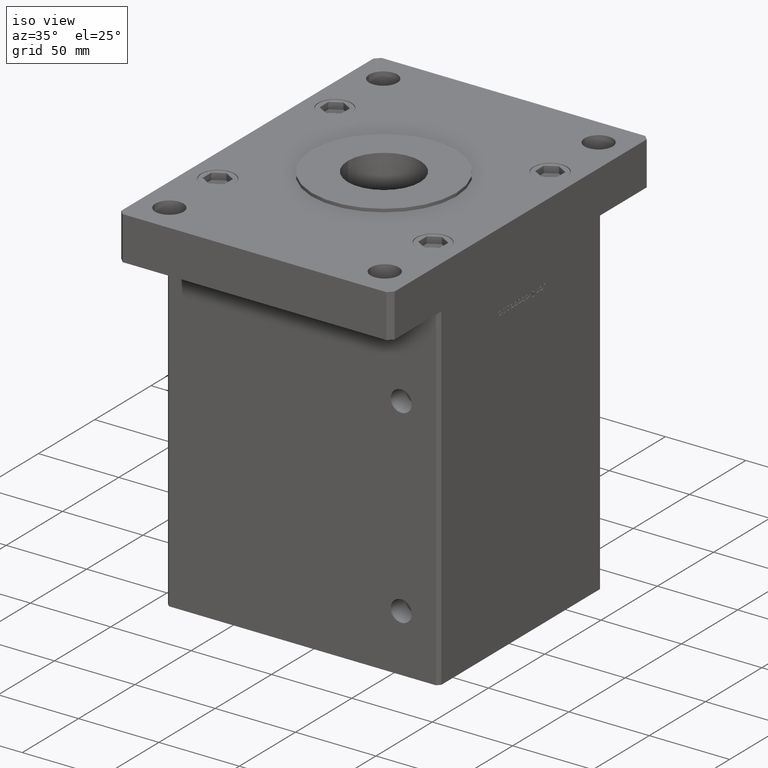
[diagram: clean part render]
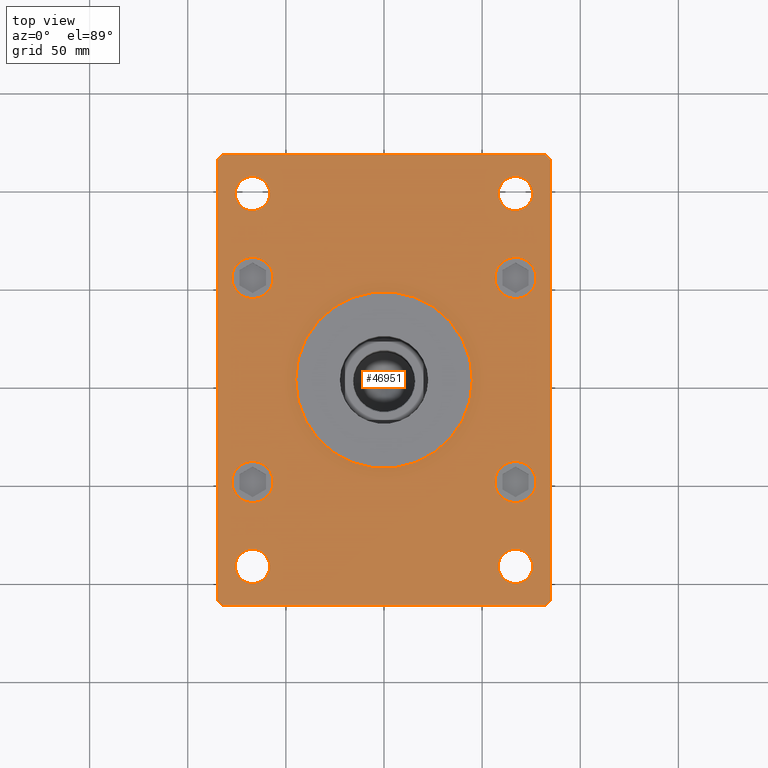
[diagram: tour spotlight — one face highlighted and labeled with its STEP entity id]
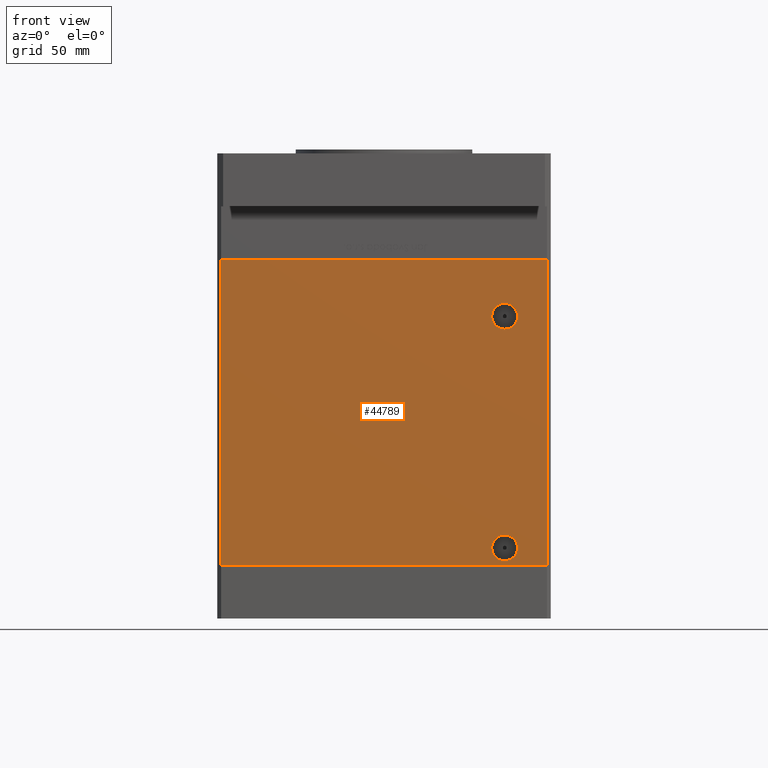
[diagram: tour spotlight — one face highlighted and labeled with its STEP entity id]
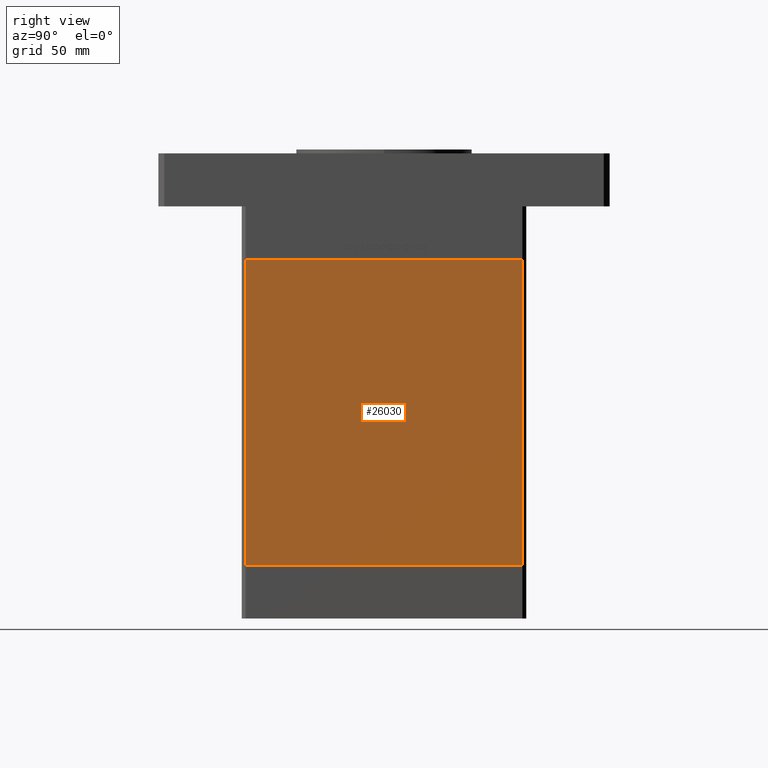
[diagram: tour spotlight — one face highlighted and labeled with its STEP entity id]
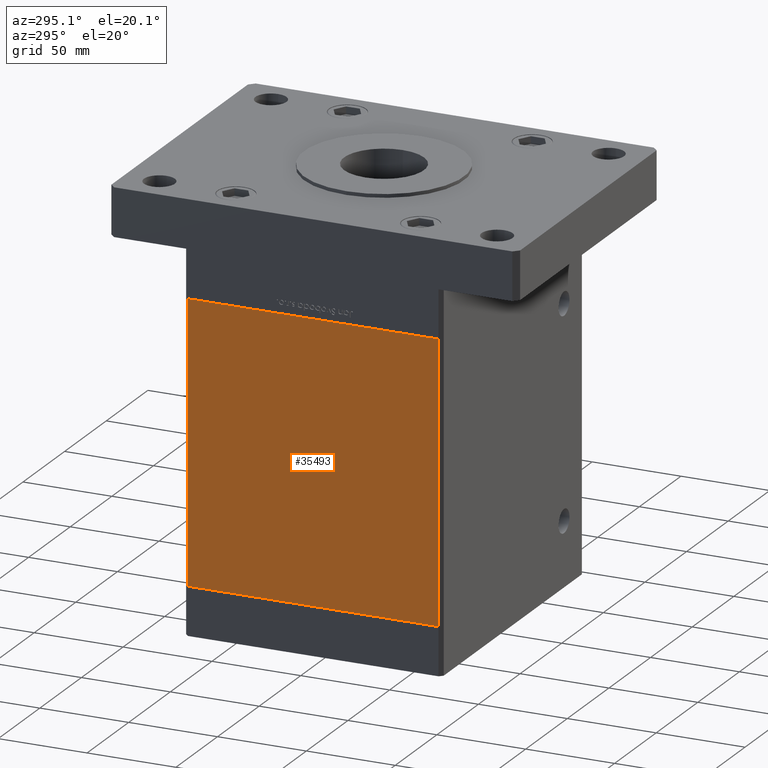
[diagram: tour spotlight — one face highlighted and labeled with its STEP entity id]
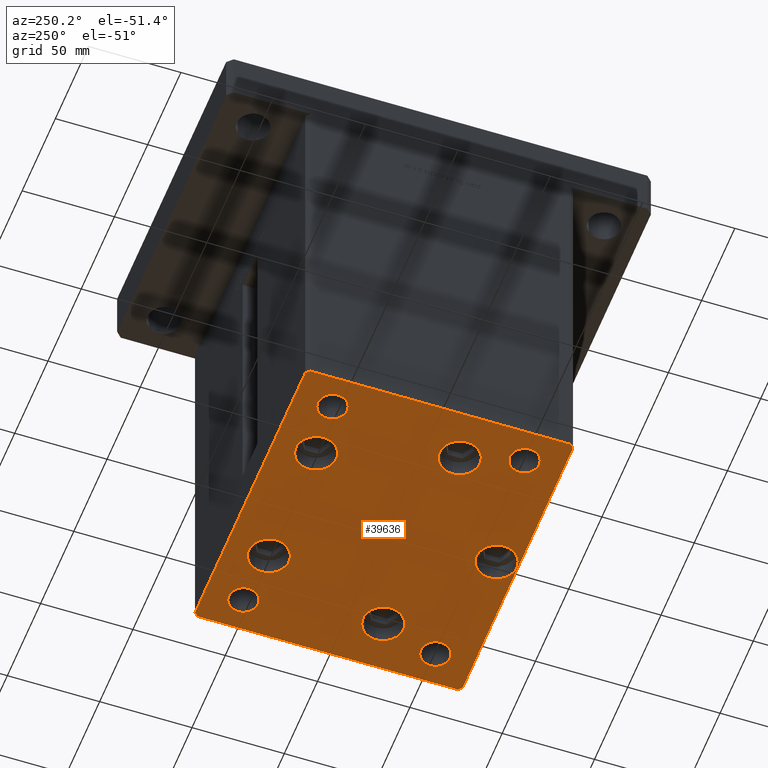
[diagram: tour spotlight — one face highlighted and labeled with its STEP entity id]
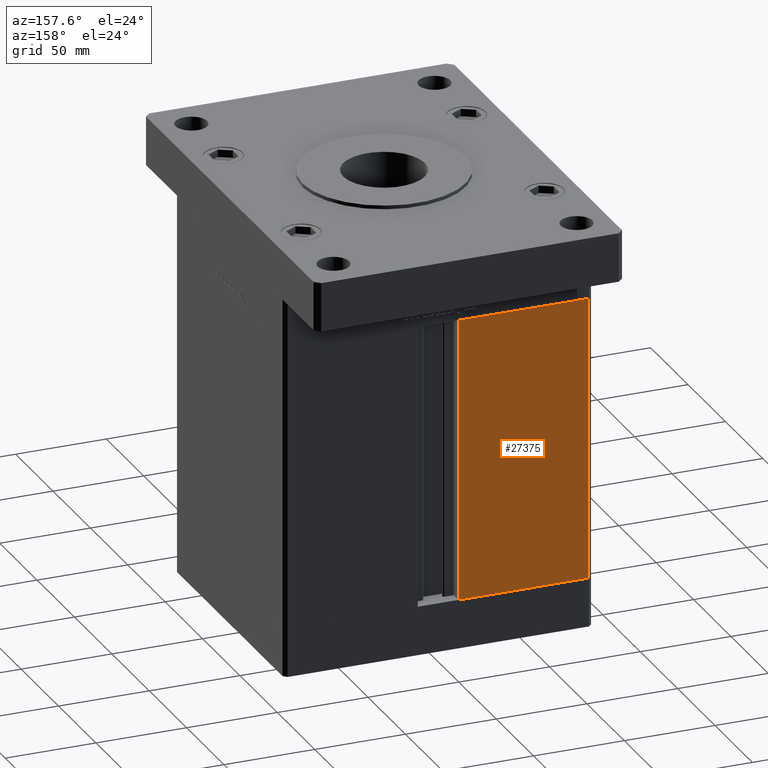
[diagram: tour spotlight — one face highlighted and labeled with its STEP entity id]
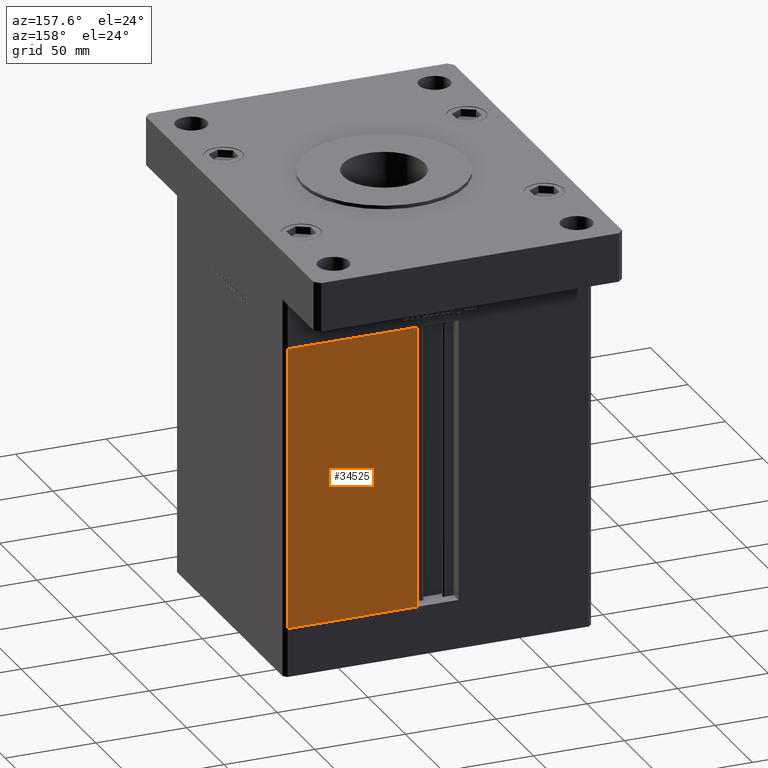
[diagram: tour spotlight — one face highlighted and labeled with its STEP entity id]
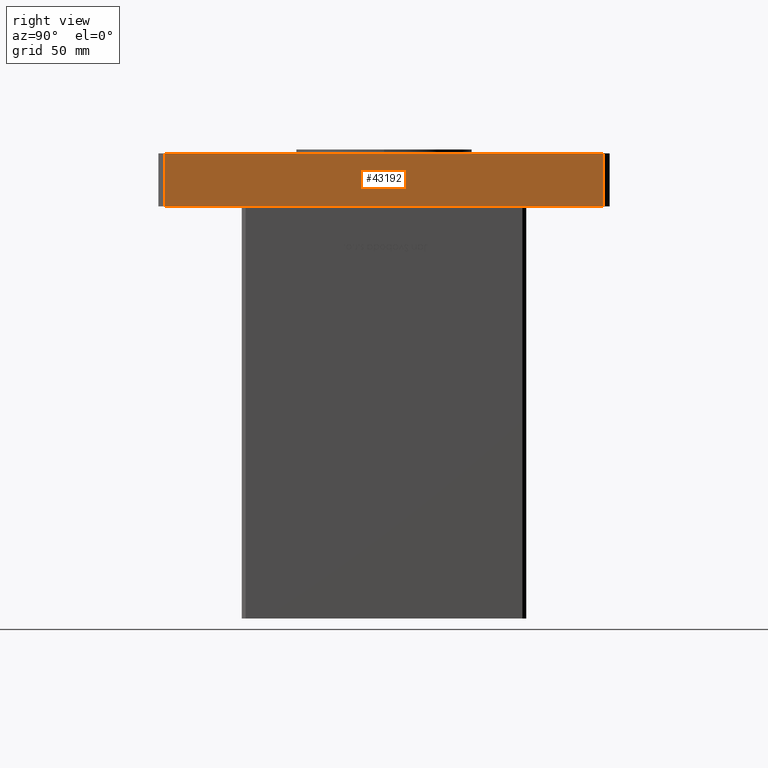
[diagram: tour spotlight — one face highlighted and labeled with its STEP entity id]
A machine part: a face-by-face anatomy tour. The part has 1310 B-rep faces; the first image is the clean iso view, then the 8 largest visible faces are spotlighted one at a time (largest first), each with its STEP entity span.

Face 1 — top view, entity #46951. In plain terms, the highlighted planar face has unit normal (0, 0, 1).
Definition (entity closure, byte-faithful):
#464 = EDGE_CURVE ( 'NONE', #19273, #29748, #39398, .T. ) ;
#545 = ORIENTED_EDGE ( 'NONE', *, *, #1926, .F. ) ;
#581 = DIRECTION ( 'NONE',  ( 0.000000000000000000, 0.000000000000000000, 1.000000000000000000 ) ) ;
#595 = CARTESIAN_POINT ( 'NONE',  ( -67.00000000000000000, 95.00000000000001421, 27.00000000000000000 ) ) ;
#749 = AXIS2_PLACEMENT_3D ( 'NONE', #45143, #24552, #37004 ) ;
#759 = VERTEX_POINT ( 'NONE', #50461 ) ;
#1380 = CARTESIAN_POINT ( 'NONE',  ( 66.99999999999997158, -95.00000000000001421, 27.00000000000000000 ) ) ;
#1926 = EDGE_CURVE ( 'NONE', #24942, #7413, #17681, .T. ) ;
#2094 = EDGE_LOOP ( 'NONE', ( #34993, #45009 ) ) ;
#2344 = CIRCLE ( 'NONE', #4084, 8.750000000000007105 ) ;
#2601 = CARTESIAN_POINT ( 'NONE',  ( 85.00000000000001421, 112.0000000000000142, 27.00000000000000000 ) ) ;
#2820 = FACE_BOUND ( 'NONE', #15017, .T. ) ;
#3081 = CARTESIAN_POINT ( 'NONE',  ( 0.000000000000000000, 0.000000000000000000, 27.00000000000000000 ) ) ;
#3271 = EDGE_CURVE ( 'NONE', #20668, #44067, #19438, .T. ) ;
#3457 = DIRECTION ( 'NONE',  ( 0.000000000000000000, 0.000000000000000000, 1.000000000000000000 ) ) ;
#3714 = EDGE_CURVE ( 'NONE', #53067, #51384, #33291, .T. ) ;
#3868 = DIRECTION ( 'NONE',  ( 1.000000000000000000, 0.000000000000000000, 0.000000000000000000 ) ) ;
#4084 = AXIS2_PLACEMENT_3D ( 'NONE', #595, #25245, #17108 ) ;
#4361 = CIRCLE ( 'NONE', #17300, 8.750000000000007105 ) ;
#4418 = CARTESIAN_POINT ( 'NONE',  ( 58.24999999999998579, 94.99999999999997158, 27.00000000000000000 ) ) ;
#4659 = DIRECTION ( 'NONE',  ( 0.000000000000000000, 0.000000000000000000, 1.000000000000000000 ) ) ;
#4708 = CARTESIAN_POINT ( 'NONE',  ( 82.00000000000004263, 115.0000000000000284, 27.00000000000000000 ) ) ;
#5098 = CIRCLE ( 'NONE', #40530, 10.49999999999999467 ) ;
#5403 = DIRECTION ( 'NONE',  ( 0.000000000000000000, 0.000000000000000000, 1.000000000000000000 ) ) ;
#5492 = ORIENTED_EDGE ( 'NONE', *, *, #464, .T. ) ;
#5574 = CARTESIAN_POINT ( 'NONE',  ( 82.00000000000002842, -114.9999999999999147, 27.00000000000000000 ) ) ;
#5609 = AXIS2_PLACEMENT_3D ( 'NONE', #37636, #37374, #42251 ) ;
#5892 = VERTEX_POINT ( 'NONE', #39582 ) ;
#5980 = CIRCLE ( 'NONE', #44048, 10.50000000000000178 ) ;
#6042 = CARTESIAN_POINT ( 'NONE',  ( 82.00000000000004263, 115.0000000000000284, 27.00000000000000000 ) ) ;
#6509 = EDGE_CURVE ( 'NONE', #29748, #53430, #51585, .T. ) ;
#6793 = ORIENTED_EDGE ( 'NONE', *, *, #24668, .T. ) ;
#6891 = FACE_BOUND ( 'NONE', #8911, .T. ) ;
#6934 = CARTESIAN_POINT ( 'NONE',  ( -84.99999999999998579, -112.0000000000000142, 27.00000000000000000 ) ) ;
#7272 = EDGE_CURVE ( 'NONE', #51384, #53067, #34132, .T. ) ;
#7413 = VERTEX_POINT ( 'NONE', #45689 ) ;
#7608 = VERTEX_POINT ( 'NONE', #6934 ) ;
#7704 = EDGE_CURVE ( 'NONE', #12074, #26139, #30688, .T. ) ;
#7827 = CARTESIAN_POINT ( 'NONE',  ( 77.50000000000001421, -52.00000000000000000, 27.00000000000000000 ) ) ;
#8468 = ORIENTED_EDGE ( 'NONE', *, *, #25790, .F. ) ;
#8658 = CARTESIAN_POINT ( 'NONE',  ( 75.74999999999998579, -95.00000000000001421, 27.00000000000000000 ) ) ;
#8911 = EDGE_LOOP ( 'NONE', ( #37713, #42941 ) ) ;
#9352 = CARTESIAN_POINT ( 'NONE',  ( 85.00000000000001421, -111.9999999999999005, 27.00000000000000000 ) ) ;
#10342 = VECTOR ( 'NONE', #13384, 1000.000000000000000 ) ;
#10772 = DIRECTION ( 'NONE',  ( 1.000000000000000000, 0.000000000000000000, 0.000000000000000000 ) ) ;
#11467 = FACE_BOUND ( 'NONE', #16418, .T. ) ;
#11667 = LINE ( 'NONE', #15985, #34875 ) ;
#11949 = VERTEX_POINT ( 'NONE', #35037 ) ;
#11993 = ORIENTED_EDGE ( 'NONE', *, *, #46403, .F. ) ;
#12074 = VERTEX_POINT ( 'NONE', #15770 ) ;
#12146 = EDGE_CURVE ( 'NONE', #16476, #20995, #17839, .T. ) ;
#12179 = EDGE_CURVE ( 'NONE', #40986, #26418, #23059, .T. ) ;
#12498 = AXIS2_PLACEMENT_3D ( 'NONE', #53461, #40755, #49408 ) ;
#12688 = ORIENTED_EDGE ( 'NONE', *, *, #23811, .F. ) ;
#13191 = DIRECTION ( 'NONE',  ( 0.000000000000000000, 0.000000000000000000, 1.000000000000000000 ) ) ;
#13384 = DIRECTION ( 'NONE',  ( 1.239088197126290570E-16, -1.000000000000000000, 0.000000000000000000 ) ) ;
#13596 = EDGE_CURVE ( 'NONE', #7413, #24942, #2344, .T. ) ;
#13628 = AXIS2_PLACEMENT_3D ( 'NONE', #26765, #31631, #10772 ) ;
#14124 = ORIENTED_EDGE ( 'NONE', *, *, #52487, .F. ) ;
#15017 = EDGE_LOOP ( 'NONE', ( #45657, #25257 ) ) ;
#15047 = VERTEX_POINT ( 'NONE', #51032 ) ;
#15104 = CARTESIAN_POINT ( 'NONE',  ( 67.00000000000001421, 52.00000000000000000, 27.00000000000000000 ) ) ;
#15172 = DIRECTION ( 'NONE',  ( 1.000000000000000000, 0.000000000000000000, 0.000000000000000000 ) ) ;
#15235 = AXIS2_PLACEMENT_3D ( 'NONE', #40753, #581, #36428 ) ;
#15597 = CARTESIAN_POINT ( 'NONE',  ( -81.99999999999998579, -115.0000000000000142, 27.00000000000000000 ) ) ;
#15682 = EDGE_CURVE ( 'NONE', #7608, #19273, #22833, .T. ) ;
#15770 = CARTESIAN_POINT ( 'NONE',  ( 56.50000000000002132, -52.00000000000000000, 27.00000000000000000 ) ) ;
#15985 = CARTESIAN_POINT ( 'NONE',  ( -82.00000000000002842, 115.0000000000000000, 27.00000000000000000 ) ) ;
#16418 = EDGE_LOOP ( 'NONE', ( #14124, #8468 ) ) ;
#16476 = VERTEX_POINT ( 'NONE', #40694 ) ;
#16549 = CIRCLE ( 'NONE', #37335, 8.750000000000007105 ) ;
#16636 = CARTESIAN_POINT ( 'NONE',  ( -85.00000000000001421, 112.0000000000000000, 27.00000000000000000 ) ) ;
#16792 = ORIENTED_EDGE ( 'NONE', *, *, #6509, .T. ) ;
#17108 = DIRECTION ( 'NONE',  ( 1.000000000000000000, 0.000000000000000000, 0.000000000000000000 ) ) ;
#17300 = AXIS2_PLACEMENT_3D ( 'NONE', #36638, #53145, #49352 ) ;
#17681 = CIRCLE ( 'NONE', #35822, 8.750000000000007105 ) ;
#17839 = CIRCLE ( 'NONE', #15235, 10.50000000000000178 ) ;
#17934 = LINE ( 'NONE', #6042, #43242 ) ;
#18883 = AXIS2_PLACEMENT_3D ( 'NONE', #15104, #52467, #23239 ) ;
#19121 = VECTOR ( 'NONE', #23407, 1000.000000000000000 ) ;
#19166 = DIRECTION ( 'NONE',  ( 1.000000000000000000, 0.000000000000000000, 0.000000000000000000 ) ) ;
#19273 = VERTEX_POINT ( 'NONE', #15597 ) ;
#19325 = DIRECTION ( 'NONE',  ( 0.000000000000000000, 0.000000000000000000, 1.000000000000000000 ) ) ;
#19438 = CIRCLE ( 'NONE', #48004, 45.00000000000000711 ) ;
#19451 = EDGE_LOOP ( 'NONE', ( #36736, #26605 ) ) ;
#19810 = CIRCLE ( 'NONE', #29324, 45.00000000000000711 ) ;
#20136 = FACE_BOUND ( 'NONE', #19451, .T. ) ;
#20238 = DIRECTION ( 'NONE',  ( 0.000000000000000000, 1.000000000000000000, 0.000000000000000000 ) ) ;
#20668 = VERTEX_POINT ( 'NONE', #20856 ) ;
#20856 = CARTESIAN_POINT ( 'NONE',  ( -45.00000000000000711, 0.000000000000000000, 27.00000000000000000 ) ) ;
#20995 = VERTEX_POINT ( 'NONE', #21367 ) ;
#21036 = CARTESIAN_POINT ( 'NONE',  ( 85.00000000000001421, -111.9999999999999005, 27.00000000000000000 ) ) ;
#21289 = CARTESIAN_POINT ( 'NONE',  ( 45.00000000000000711, 5.510910596163090344E-15, 27.00000000000000000 ) ) ;
#21367 = CARTESIAN_POINT ( 'NONE',  ( -77.50000000000000000, 52.00000000000001421, 27.00000000000000000 ) ) ;
#21413 = CARTESIAN_POINT ( 'NONE',  ( -75.74999999999998579, -95.00000000000001421, 27.00000000000000000 ) ) ;
#22356 = EDGE_CURVE ( 'NONE', #11949, #7608, #50483, .T. ) ;
#22437 = AXIS2_PLACEMENT_3D ( 'NONE', #29040, #4659, #24164 ) ;
#22438 = CARTESIAN_POINT ( 'NONE',  ( -67.00000000000000000, -52.00000000000000000, 27.00000000000000000 ) ) ;
#22773 = EDGE_CURVE ( 'NONE', #26139, #12074, #5098, .T. ) ;
#22833 = LINE ( 'NONE', #26366, #36083 ) ;
#23059 = CIRCLE ( 'NONE', #34284, 10.49999999999999467 ) ;
#23239 = DIRECTION ( 'NONE',  ( 1.000000000000000000, 0.000000000000000000, 0.000000000000000000 ) ) ;
#23407 = DIRECTION ( 'NONE',  ( -0.7071067811865426878, 0.7071067811865524577, 0.000000000000000000 ) ) ;
#23659 = FACE_BOUND ( 'NONE', #27675, .T. ) ;
#23811 = EDGE_CURVE ( 'NONE', #15047, #39376, #38779, .T. ) ;
#23917 = PLANE ( 'NONE',  #37245 ) ;
#24164 = DIRECTION ( 'NONE',  ( 1.000000000000000000, 0.000000000000000000, 0.000000000000000000 ) ) ;
#24414 = EDGE_CURVE ( 'NONE', #44067, #20668, #19810, .T. ) ;
#24552 = DIRECTION ( 'NONE',  ( 0.000000000000000000, 0.000000000000000000, 1.000000000000000000 ) ) ;
#24632 = EDGE_CURVE ( 'NONE', #20995, #16476, #5980, .T. ) ;
#24668 = EDGE_CURVE ( 'NONE', #53430, #35336, #29163, .T. ) ;
#24942 = VERTEX_POINT ( 'NONE', #26965 ) ;
#25245 = DIRECTION ( 'NONE',  ( 0.000000000000000000, 0.000000000000000000, 1.000000000000000000 ) ) ;
#25257 = ORIENTED_EDGE ( 'NONE', *, *, #50472, .F. ) ;
#25608 = ORIENTED_EDGE ( 'NONE', *, *, #27878, .T. ) ;
#25790 = EDGE_CURVE ( 'NONE', #5892, #34417, #27622, .T. ) ;
#25825 = CARTESIAN_POINT ( 'NONE',  ( 77.50000000000001421, 52.00000000000000000, 27.00000000000000000 ) ) ;
#26057 = ORIENTED_EDGE ( 'NONE', *, *, #22356, .T. ) ;
#26139 = VERTEX_POINT ( 'NONE', #7827 ) ;
#26198 = ORIENTED_EDGE ( 'NONE', *, *, #13596, .F. ) ;
#26366 = CARTESIAN_POINT ( 'NONE',  ( -84.99999999999998579, -112.0000000000000142, 27.00000000000000000 ) ) ;
#26418 = VERTEX_POINT ( 'NONE', #39438 ) ;
#26605 = ORIENTED_EDGE ( 'NONE', *, *, #24414, .F. ) ;
#26663 = CIRCLE ( 'NONE', #18883, 10.49999999999999467 ) ;
#26765 = CARTESIAN_POINT ( 'NONE',  ( 66.99999999999997158, -95.00000000000001421, 27.00000000000000000 ) ) ;
#26965 = CARTESIAN_POINT ( 'NONE',  ( -58.24999999999999289, 95.00000000000001421, 27.00000000000000000 ) ) ;
#27032 = DIRECTION ( 'NONE',  ( 1.000000000000000000, 0.000000000000000000, 0.000000000000000000 ) ) ;
#27622 = CIRCLE ( 'NONE', #22437, 8.750000000000007105 ) ;
#27675 = EDGE_LOOP ( 'NONE', ( #33555, #43934 ) ) ;
#27878 = EDGE_CURVE ( 'NONE', #28719, #759, #17934, .T. ) ;
#28008 = EDGE_LOOP ( 'NONE', ( #26198, #545 ) ) ;
#28506 = CARTESIAN_POINT ( 'NONE',  ( 67.00000000000001421, -52.00000000000000000, 27.00000000000000000 ) ) ;
#28719 = VERTEX_POINT ( 'NONE', #4708 ) ;
#29040 = CARTESIAN_POINT ( 'NONE',  ( -66.99999999999997158, -95.00000000000001421, 27.00000000000000000 ) ) ;
#29163 = LINE ( 'NONE', #21036, #46645 ) ;
#29324 = AXIS2_PLACEMENT_3D ( 'NONE', #45752, #46022, #27032 ) ;
#29723 = DIRECTION ( 'NONE',  ( 1.000000000000000000, 0.000000000000000000, 0.000000000000000000 ) ) ;
#29748 = VERTEX_POINT ( 'NONE', #37722 ) ;
#30217 = DIRECTION ( 'NONE',  ( 0.7071067811865459074, 0.7071067811865491270, 0.000000000000000000 ) ) ;
#30688 = CIRCLE ( 'NONE', #12498, 10.49999999999999467 ) ;
#30770 = VECTOR ( 'NONE', #30217, 1000.000000000000114 ) ;
#31351 = CIRCLE ( 'NONE', #50355, 8.750000000000007105 ) ;
#31436 = ORIENTED_EDGE ( 'NONE', *, *, #12179, .F. ) ;
#31454 = ORIENTED_EDGE ( 'NONE', *, *, #31827, .T. ) ;
#31536 = AXIS2_PLACEMENT_3D ( 'NONE', #22438, #5403, #38688 ) ;
#31631 = DIRECTION ( 'NONE',  ( 0.000000000000000000, 0.000000000000000000, 1.000000000000000000 ) ) ;
#31827 = EDGE_CURVE ( 'NONE', #759, #11949, #11667, .T. ) ;
#31834 = DIRECTION ( 'NONE',  ( 1.000000000000000000, 0.000000000000000000, 0.000000000000000000 ) ) ;
#32059 = DIRECTION ( 'NONE',  ( 1.000000000000000000, 0.000000000000000000, 0.000000000000000000 ) ) ;
#32108 = DIRECTION ( 'NONE',  ( 0.000000000000000000, 0.000000000000000000, 1.000000000000000000 ) ) ;
#33291 = CIRCLE ( 'NONE', #5609, 10.50000000000000178 ) ;
#33555 = ORIENTED_EDGE ( 'NONE', *, *, #24632, .F. ) ;
#34132 = CIRCLE ( 'NONE', #31536, 10.50000000000000178 ) ;
#34284 = AXIS2_PLACEMENT_3D ( 'NONE', #36951, #32108, #31834 ) ;
#34417 = VERTEX_POINT ( 'NONE', #21413 ) ;
#34694 = DIRECTION ( 'NONE',  ( 0.000000000000000000, 0.000000000000000000, 1.000000000000000000 ) ) ;
#34729 = EDGE_CURVE ( 'NONE', #47674, #50798, #44756, .T. ) ;
#34767 = DIRECTION ( 'NONE',  ( 0.7071067811865474617, -0.7071067811865474617, 0.000000000000000000 ) ) ;
#34875 = VECTOR ( 'NONE', #44448, 1000.000000000000114 ) ;
#34914 = VECTOR ( 'NONE', #35879, 1000.000000000000000 ) ;
#34993 = ORIENTED_EDGE ( 'NONE', *, *, #7704, .F. ) ;
#35009 = DIRECTION ( 'NONE',  ( -1.000000000000000000, -1.692413147294444984E-16, 0.000000000000000000 ) ) ;
#35037 = CARTESIAN_POINT ( 'NONE',  ( -85.00000000000001421, 112.0000000000000000, 27.00000000000000000 ) ) ;
#35336 = VERTEX_POINT ( 'NONE', #2601 ) ;
#35822 = AXIS2_PLACEMENT_3D ( 'NONE', #41905, #13191, #29723 ) ;
#35879 = DIRECTION ( 'NONE',  ( 1.000000000000000000, 6.769652589177783879E-16, 0.000000000000000000 ) ) ;
#36029 = DIRECTION ( 'NONE',  ( 0.000000000000000000, 0.000000000000000000, 1.000000000000000000 ) ) ;
#36083 = VECTOR ( 'NONE', #34767, 1000.000000000000114 ) ;
#36385 = FACE_BOUND ( 'NONE', #42263, .T. ) ;
#36428 = DIRECTION ( 'NONE',  ( 1.000000000000000000, 0.000000000000000000, 0.000000000000000000 ) ) ;
#36461 = ORIENTED_EDGE ( 'NONE', *, *, #15682, .T. ) ;
#36638 = CARTESIAN_POINT ( 'NONE',  ( 67.00000000000000000, 94.99999999999997158, 27.00000000000000000 ) ) ;
#36736 = ORIENTED_EDGE ( 'NONE', *, *, #3271, .F. ) ;
#36951 = CARTESIAN_POINT ( 'NONE',  ( 67.00000000000001421, 52.00000000000000000, 27.00000000000000000 ) ) ;
#37004 = DIRECTION ( 'NONE',  ( 1.000000000000000000, 0.000000000000000000, 0.000000000000000000 ) ) ;
#37159 = DIRECTION ( 'NONE',  ( 0.000000000000000000, 0.000000000000000000, 1.000000000000000000 ) ) ;
#37245 = AXIS2_PLACEMENT_3D ( 'NONE', #3081, #19325, #52625 ) ;
#37335 = AXIS2_PLACEMENT_3D ( 'NONE', #1380, #34694, #42552 ) ;
#37374 = DIRECTION ( 'NONE',  ( 0.000000000000000000, 0.000000000000000000, 1.000000000000000000 ) ) ;
#37636 = CARTESIAN_POINT ( 'NONE',  ( -67.00000000000000000, -52.00000000000000000, 27.00000000000000000 ) ) ;
#37713 = ORIENTED_EDGE ( 'NONE', *, *, #3714, .F. ) ;
#37722 = CARTESIAN_POINT ( 'NONE',  ( 82.00000000000002842, -114.9999999999999147, 27.00000000000000000 ) ) ;
#38688 = DIRECTION ( 'NONE',  ( 1.000000000000000000, 0.000000000000000000, 0.000000000000000000 ) ) ;
#38779 = CIRCLE ( 'NONE', #749, 8.750000000000007105 ) ;
#39376 = VERTEX_POINT ( 'NONE', #4418 ) ;
#39398 = LINE ( 'NONE', #47813, #34914 ) ;
#39438 = CARTESIAN_POINT ( 'NONE',  ( 56.50000000000002132, 52.00000000000000000, 27.00000000000000000 ) ) ;
#39582 = CARTESIAN_POINT ( 'NONE',  ( -58.24999999999997158, -95.00000000000001421, 27.00000000000000000 ) ) ;
#39912 = FACE_BOUND ( 'NONE', #28008, .T. ) ;
#40172 = FACE_OUTER_BOUND ( 'NONE', #49453, .T. ) ;
#40530 = AXIS2_PLACEMENT_3D ( 'NONE', #28506, #37159, #3868 ) ;
#40694 = CARTESIAN_POINT ( 'NONE',  ( -56.50000000000000000, 52.00000000000001421, 27.00000000000000000 ) ) ;
#40753 = CARTESIAN_POINT ( 'NONE',  ( -67.00000000000000000, 52.00000000000001421, 27.00000000000000000 ) ) ;
#40755 = DIRECTION ( 'NONE',  ( 0.000000000000000000, 0.000000000000000000, 1.000000000000000000 ) ) ;
#40896 = CARTESIAN_POINT ( 'NONE',  ( -66.99999999999997158, -95.00000000000001421, 27.00000000000000000 ) ) ;
#40986 = VERTEX_POINT ( 'NONE', #25825 ) ;
#41630 = EDGE_CURVE ( 'NONE', #26418, #40986, #26663, .T. ) ;
#41905 = CARTESIAN_POINT ( 'NONE',  ( -67.00000000000000000, 95.00000000000001421, 27.00000000000000000 ) ) ;
#42251 = DIRECTION ( 'NONE',  ( 1.000000000000000000, 0.000000000000000000, 0.000000000000000000 ) ) ;
#42263 = EDGE_LOOP ( 'NONE', ( #11993, #12688 ) ) ;
#42552 = DIRECTION ( 'NONE',  ( 1.000000000000000000, 0.000000000000000000, 0.000000000000000000 ) ) ;
#42941 = ORIENTED_EDGE ( 'NONE', *, *, #7272, .F. ) ;
#43242 = VECTOR ( 'NONE', #35009, 1000.000000000000000 ) ;
#43391 = EDGE_LOOP ( 'NONE', ( #48737, #31436 ) ) ;
#43778 = CARTESIAN_POINT ( 'NONE',  ( 58.24999999999996447, -95.00000000000001421, 27.00000000000000000 ) ) ;
#43934 = ORIENTED_EDGE ( 'NONE', *, *, #12146, .F. ) ;
#44048 = AXIS2_PLACEMENT_3D ( 'NONE', #52728, #3457, #19166 ) ;
#44067 = VERTEX_POINT ( 'NONE', #21289 ) ;
#44241 = FACE_BOUND ( 'NONE', #2094, .T. ) ;
#44448 = DIRECTION ( 'NONE',  ( -0.7071067811865459074, -0.7071067811865491270, 0.000000000000000000 ) ) ;
#44756 = CIRCLE ( 'NONE', #13628, 8.750000000000007105 ) ;
#45009 = ORIENTED_EDGE ( 'NONE', *, *, #22773, .F. ) ;
#45038 = DIRECTION ( 'NONE',  ( 0.000000000000000000, 0.000000000000000000, 1.000000000000000000 ) ) ;
#45143 = CARTESIAN_POINT ( 'NONE',  ( 67.00000000000000000, 94.99999999999997158, 27.00000000000000000 ) ) ;
#45657 = ORIENTED_EDGE ( 'NONE', *, *, #34729, .F. ) ;
#45689 = CARTESIAN_POINT ( 'NONE',  ( -75.75000000000001421, 95.00000000000001421, 27.00000000000000000 ) ) ;
#45752 = CARTESIAN_POINT ( 'NONE',  ( 0.000000000000000000, 0.000000000000000000, 27.00000000000000000 ) ) ;
#46022 = DIRECTION ( 'NONE',  ( 0.000000000000000000, 0.000000000000000000, 1.000000000000000000 ) ) ;
#46403 = EDGE_CURVE ( 'NONE', #39376, #15047, #4361, .T. ) ;
#46416 = CARTESIAN_POINT ( 'NONE',  ( -56.50000000000000000, -52.00000000000000000, 27.00000000000000000 ) ) ;
#46645 = VECTOR ( 'NONE', #20238, 1000.000000000000000 ) ;
#46951 = ADVANCED_FACE ( 'NONE', ( #20136, #23659, #44241, #39912, #11467, #40172, #36385, #6891, #52895, #2820 ), #23917, .T. ) ;
#47674 = VERTEX_POINT ( 'NONE', #43778 ) ;
#47813 = CARTESIAN_POINT ( 'NONE',  ( -81.99999999999998579, -115.0000000000000142, 27.00000000000000000 ) ) ;
#48004 = AXIS2_PLACEMENT_3D ( 'NONE', #49627, #45038, #32059 ) ;
#48737 = ORIENTED_EDGE ( 'NONE', *, *, #41630, .F. ) ;
#48758 = EDGE_CURVE ( 'NONE', #35336, #28719, #51846, .T. ) ;
#49352 = DIRECTION ( 'NONE',  ( 1.000000000000000000, 0.000000000000000000, 0.000000000000000000 ) ) ;
#49408 = DIRECTION ( 'NONE',  ( 1.000000000000000000, 0.000000000000000000, 0.000000000000000000 ) ) ;
#49453 = EDGE_LOOP ( 'NONE', ( #5492, #16792, #6793, #52512, #25608, #31454, #26057, #36461 ) ) ;
#49627 = CARTESIAN_POINT ( 'NONE',  ( 0.000000000000000000, 0.000000000000000000, 27.00000000000000000 ) ) ;
#50355 = AXIS2_PLACEMENT_3D ( 'NONE', #40896, #36029, #15172 ) ;
#50461 = CARTESIAN_POINT ( 'NONE',  ( -82.00000000000002842, 115.0000000000000000, 27.00000000000000000 ) ) ;
#50472 = EDGE_CURVE ( 'NONE', #50798, #47674, #16549, .T. ) ;
#50483 = LINE ( 'NONE', #16636, #10342 ) ;
#50798 = VERTEX_POINT ( 'NONE', #8658 ) ;
#51032 = CARTESIAN_POINT ( 'NONE',  ( 75.75000000000001421, 94.99999999999997158, 27.00000000000000000 ) ) ;
#51384 = VERTEX_POINT ( 'NONE', #46416 ) ;
#51585 = LINE ( 'NONE', #5574, #30770 ) ;
#51846 = LINE ( 'NONE', #52640, #19121 ) ;
#51973 = CARTESIAN_POINT ( 'NONE',  ( -77.50000000000000000, -52.00000000000000000, 27.00000000000000000 ) ) ;
#52467 = DIRECTION ( 'NONE',  ( 0.000000000000000000, 0.000000000000000000, 1.000000000000000000 ) ) ;
#52487 = EDGE_CURVE ( 'NONE', #34417, #5892, #31351, .T. ) ;
#52512 = ORIENTED_EDGE ( 'NONE', *, *, #48758, .T. ) ;
#52625 = DIRECTION ( 'NONE',  ( 1.000000000000000000, 0.000000000000000000, -0.000000000000000000 ) ) ;
#52640 = CARTESIAN_POINT ( 'NONE',  ( 85.00000000000001421, 112.0000000000000142, 27.00000000000000000 ) ) ;
#52728 = CARTESIAN_POINT ( 'NONE',  ( -67.00000000000000000, 52.00000000000001421, 27.00000000000000000 ) ) ;
#52895 = FACE_BOUND ( 'NONE', #43391, .T. ) ;
#53067 = VERTEX_POINT ( 'NONE', #51973 ) ;
#53145 = DIRECTION ( 'NONE',  ( 0.000000000000000000, 0.000000000000000000, 1.000000000000000000 ) ) ;
#53430 = VERTEX_POINT ( 'NONE', #9352 ) ;
#53461 = CARTESIAN_POINT ( 'NONE',  ( 67.00000000000001421, -52.00000000000000000, 27.00000000000000000 ) ) ;

Face 2 — front view, entity #44789. In plain terms, the highlighted planar face has unit normal (0, 1, 0).
Definition (entity closure, byte-faithful):
#147 = EDGE_LOOP ( 'NONE', ( #6746, #37924 ) ) ;
#3120 = CARTESIAN_POINT ( 'NONE',  ( 61.49999999999997868, -72.50000000000002842, 127.0000000000000000 ) ) ;
#4052 = AXIS2_PLACEMENT_3D ( 'NONE', #48619, #15293, #52670 ) ;
#4942 = CARTESIAN_POINT ( 'NONE',  ( -82.99999999999998579, -72.50000000000002842, 0.000000000000000000 ) ) ;
#6375 = CARTESIAN_POINT ( 'NONE',  ( -82.99999999999998579, -72.50000000000002842, 156.0000000000000000 ) ) ;
#6536 = EDGE_CURVE ( 'NONE', #11427, #49221, #47532, .T. ) ;
#6579 = CARTESIAN_POINT ( 'NONE',  ( -82.99999999999998579, -72.50000000000002842, 156.0000000000000000 ) ) ;
#6632 = CARTESIAN_POINT ( 'NONE',  ( 61.49999999999999289, -72.50000000000002842, 9.000000000000007105 ) ) ;
#6746 = ORIENTED_EDGE ( 'NONE', *, *, #26206, .F. ) ;
#7494 = CIRCLE ( 'NONE', #4052, 6.579999999999988525 ) ;
#7589 = CARTESIAN_POINT ( 'NONE',  ( -82.99999999999998579, -72.50000000000002842, 156.0000000000000000 ) ) ;
#10366 = LINE ( 'NONE', #6579, #25996 ) ;
#11427 = VERTEX_POINT ( 'NONE', #47628 ) ;
#11904 = FACE_BOUND ( 'NONE', #25531, .T. ) ;
#11918 = VECTOR ( 'NONE', #26847, 1000.000000000000000 ) ;
#12182 = EDGE_CURVE ( 'NONE', #28292, #30852, #7494, .T. ) ;
#15146 = CARTESIAN_POINT ( 'NONE',  ( 82.99999999999998579, -72.50000000000002842, 156.0000000000000000 ) ) ;
#15293 = DIRECTION ( 'NONE',  ( -0.000000000000000000, 1.000000000000000000, -0.000000000000000000 ) ) ;
#16132 = CARTESIAN_POINT ( 'NONE',  ( 61.49999999999999289, -72.50000000000002842, 2.420000000000013252 ) ) ;
#16147 = ORIENTED_EDGE ( 'NONE', *, *, #48641, .T. ) ;
#16766 = EDGE_CURVE ( 'NONE', #49221, #25616, #17638, .T. ) ;
#16941 = CARTESIAN_POINT ( 'NONE',  ( 61.49999999999997868, -72.50000000000002842, 120.4200000000000159 ) ) ;
#17638 = LINE ( 'NONE', #26310, #11918 ) ;
#17996 = CARTESIAN_POINT ( 'NONE',  ( -82.99999999999998579, -72.50000000000002842, 0.000000000000000000 ) ) ;
#18099 = AXIS2_PLACEMENT_3D ( 'NONE', #20808, #49240, #44649 ) ;
#20808 = CARTESIAN_POINT ( 'NONE',  ( 61.49999999999999289, -72.50000000000002842, 9.000000000000007105 ) ) ;
#24303 = VECTOR ( 'NONE', #34538, 1000.000000000000000 ) ;
#24648 = VERTEX_POINT ( 'NONE', #35689 ) ;
#25304 = CARTESIAN_POINT ( 'NONE',  ( 82.99999999999998579, -72.50000000000002842, 0.000000000000000000 ) ) ;
#25531 = EDGE_LOOP ( 'NONE', ( #39529, #32737 ) ) ;
#25616 = VERTEX_POINT ( 'NONE', #25304 ) ;
#25996 = VECTOR ( 'NONE', #35018, 1000.000000000000000 ) ;
#26206 = EDGE_CURVE ( 'NONE', #27343, #24648, #26775, .T. ) ;
#26310 = CARTESIAN_POINT ( 'NONE',  ( 82.99999999999998579, -72.50000000000002842, 156.0000000000000000 ) ) ;
#26673 = LINE ( 'NONE', #17996, #24303 ) ;
#26775 = CIRCLE ( 'NONE', #18099, 6.579999999999994742 ) ;
#26847 = DIRECTION ( 'NONE',  ( -0.000000000000000000, -0.000000000000000000, -1.000000000000000000 ) ) ;
#26950 = DIRECTION ( 'NONE',  ( 1.000000000000000000, 0.000000000000000000, 0.000000000000000000 ) ) ;
#27343 = VERTEX_POINT ( 'NONE', #16132 ) ;
#27492 = DIRECTION ( 'NONE',  ( -0.000000000000000000, 1.000000000000000000, -0.000000000000000000 ) ) ;
#27693 = CARTESIAN_POINT ( 'NONE',  ( 61.49999999999997868, -72.50000000000002842, 133.5800000000000125 ) ) ;
#27944 = AXIS2_PLACEMENT_3D ( 'NONE', #3120, #27492, #40747 ) ;
#28172 = VECTOR ( 'NONE', #26950, 1000.000000000000000 ) ;
#28292 = VERTEX_POINT ( 'NONE', #16941 ) ;
#28427 = DIRECTION ( 'NONE',  ( 0.000000000000000000, -0.000000000000000000, 1.000000000000000000 ) ) ;
#28898 = EDGE_CURVE ( 'NONE', #11427, #46501, #10366, .T. ) ;
#30852 = VERTEX_POINT ( 'NONE', #27693 ) ;
#31291 = EDGE_CURVE ( 'NONE', #30852, #28292, #45231, .T. ) ;
#32737 = ORIENTED_EDGE ( 'NONE', *, *, #31291, .T. ) ;
#33273 = EDGE_CURVE ( 'NONE', #24648, #27343, #53359, .T. ) ;
#34538 = DIRECTION ( 'NONE',  ( 1.000000000000000000, 0.000000000000000000, 0.000000000000000000 ) ) ;
#35018 = DIRECTION ( 'NONE',  ( -0.000000000000000000, -0.000000000000000000, -1.000000000000000000 ) ) ;
#35689 = CARTESIAN_POINT ( 'NONE',  ( 61.49999999999999289, -72.50000000000002842, 15.58000000000000362 ) ) ;
#36724 = ORIENTED_EDGE ( 'NONE', *, *, #28898, .T. ) ;
#37542 = FACE_OUTER_BOUND ( 'NONE', #49202, .T. ) ;
#37924 = ORIENTED_EDGE ( 'NONE', *, *, #33273, .F. ) ;
#39529 = ORIENTED_EDGE ( 'NONE', *, *, #12182, .T. ) ;
#39658 = DIRECTION ( 'NONE',  ( 0.000000000000000000, -1.000000000000000000, 0.000000000000000000 ) ) ;
#40617 = DIRECTION ( 'NONE',  ( 0.000000000000000000, 1.000000000000000000, 0.000000000000000000 ) ) ;
#40747 = DIRECTION ( 'NONE',  ( 0.000000000000000000, 0.000000000000000000, -1.000000000000000000 ) ) ;
#40901 = ORIENTED_EDGE ( 'NONE', *, *, #6536, .F. ) ;
#43722 = DIRECTION ( 'NONE',  ( 0.000000000000000000, 0.000000000000000000, -1.000000000000000000 ) ) ;
#44649 = DIRECTION ( 'NONE',  ( 0.000000000000000000, 0.000000000000000000, -1.000000000000000000 ) ) ;
#44677 = FACE_BOUND ( 'NONE', #147, .T. ) ;
#44789 = ADVANCED_FACE ( 'NONE', ( #44677, #37542, #11904 ), #52264, .F. ) ;
#45231 = CIRCLE ( 'NONE', #27944, 6.579999999999988525 ) ;
#46501 = VERTEX_POINT ( 'NONE', #4942 ) ;
#47532 = LINE ( 'NONE', #6375, #28172 ) ;
#47628 = CARTESIAN_POINT ( 'NONE',  ( -82.99999999999998579, -72.50000000000002842, 156.0000000000000000 ) ) ;
#48619 = CARTESIAN_POINT ( 'NONE',  ( 61.49999999999997868, -72.50000000000002842, 127.0000000000000000 ) ) ;
#48641 = EDGE_CURVE ( 'NONE', #46501, #25616, #26673, .T. ) ;
#49202 = EDGE_LOOP ( 'NONE', ( #16147, #49489, #40901, #36724 ) ) ;
#49221 = VERTEX_POINT ( 'NONE', #15146 ) ;
#49240 = DIRECTION ( 'NONE',  ( 0.000000000000000000, -1.000000000000000000, 0.000000000000000000 ) ) ;
#49275 = AXIS2_PLACEMENT_3D ( 'NONE', #7589, #40617, #28427 ) ;
#49489 = ORIENTED_EDGE ( 'NONE', *, *, #16766, .F. ) ;
#52264 = PLANE ( 'NONE',  #49275 ) ;
#52482 = AXIS2_PLACEMENT_3D ( 'NONE', #6632, #39658, #43722 ) ;
#52670 = DIRECTION ( 'NONE',  ( 0.000000000000000000, 0.000000000000000000, -1.000000000000000000 ) ) ;
#53359 = CIRCLE ( 'NONE', #52482, 6.579999999999994742 ) ;

Face 3 — right view, entity #26030. In plain terms, the highlighted planar face has unit normal (1, -0, 0).
Definition (entity closure, byte-faithful):
#2654 = VERTEX_POINT ( 'NONE', #51485 ) ;
#3396 = VECTOR ( 'NONE', #27422, 1000.000000000000000 ) ;
#5389 = PLANE ( 'NONE',  #18987 ) ;
#10373 = VERTEX_POINT ( 'NONE', #17883 ) ;
#12349 = ORIENTED_EDGE ( 'NONE', *, *, #32339, .T. ) ;
#12587 = CARTESIAN_POINT ( 'NONE',  ( 84.99999999999998579, -70.50000000000001421, 0.000000000000000000 ) ) ;
#13142 = LINE ( 'NONE', #26134, #29699 ) ;
#13932 = DIRECTION ( 'NONE',  ( -1.968480540115525664E-16, -1.000000000000000000, 0.000000000000000000 ) ) ;
#16663 = ORIENTED_EDGE ( 'NONE', *, *, #19401, .F. ) ;
#17883 = CARTESIAN_POINT ( 'NONE',  ( 84.99999999999998579, -70.50000000000001421, 156.0000000000000000 ) ) ;
#18086 = CARTESIAN_POINT ( 'NONE',  ( 85.00000000000001421, 70.49999999999998579, 156.0000000000000000 ) ) ;
#18987 = AXIS2_PLACEMENT_3D ( 'NONE', #18086, #38410, #25691 ) ;
#19124 = EDGE_CURVE ( 'NONE', #2654, #10373, #26998, .T. ) ;
#19401 = EDGE_CURVE ( 'NONE', #44726, #38217, #49968, .T. ) ;
#25691 = DIRECTION ( 'NONE',  ( 1.968480540115525910E-16, 1.000000000000000000, 0.000000000000000000 ) ) ;
#26030 = ADVANCED_FACE ( 'NONE', ( #34092 ), #5389, .T. ) ;
#26032 = CARTESIAN_POINT ( 'NONE',  ( 85.00000000000001421, 70.49999999999998579, 0.000000000000000000 ) ) ;
#26134 = CARTESIAN_POINT ( 'NONE',  ( 84.99999999999998579, -70.50000000000001421, 156.0000000000000000 ) ) ;
#26998 = LINE ( 'NONE', #51633, #50929 ) ;
#27422 = DIRECTION ( 'NONE',  ( -0.000000000000000000, -0.000000000000000000, -1.000000000000000000 ) ) ;
#27528 = DIRECTION ( 'NONE',  ( -1.968480540115525664E-16, -1.000000000000000000, 0.000000000000000000 ) ) ;
#29699 = VECTOR ( 'NONE', #50765, 1000.000000000000000 ) ;
#30429 = CARTESIAN_POINT ( 'NONE',  ( 85.00000000000001421, 70.49999999999998579, 156.0000000000000000 ) ) ;
#32339 = EDGE_CURVE ( 'NONE', #10373, #38217, #13142, .T. ) ;
#34092 = FACE_OUTER_BOUND ( 'NONE', #52770, .T. ) ;
#34532 = CARTESIAN_POINT ( 'NONE',  ( 85.00000000000001421, 70.49999999999998579, 0.000000000000000000 ) ) ;
#35069 = ORIENTED_EDGE ( 'NONE', *, *, #44315, .F. ) ;
#38217 = VERTEX_POINT ( 'NONE', #12587 ) ;
#38410 = DIRECTION ( 'NONE',  ( 1.000000000000000000, -1.968480540115525910E-16, 0.000000000000000000 ) ) ;
#43670 = LINE ( 'NONE', #30429, #3396 ) ;
#44315 = EDGE_CURVE ( 'NONE', #2654, #44726, #43670, .T. ) ;
#44726 = VERTEX_POINT ( 'NONE', #26032 ) ;
#46988 = ORIENTED_EDGE ( 'NONE', *, *, #19124, .T. ) ;
#49188 = VECTOR ( 'NONE', #13932, 1000.000000000000000 ) ;
#49968 = LINE ( 'NONE', #34532, #49188 ) ;
#50765 = DIRECTION ( 'NONE',  ( -0.000000000000000000, -0.000000000000000000, -1.000000000000000000 ) ) ;
#50929 = VECTOR ( 'NONE', #27528, 1000.000000000000000 ) ;
#51485 = CARTESIAN_POINT ( 'NONE',  ( 85.00000000000001421, 70.49999999999998579, 156.0000000000000000 ) ) ;
#51633 = CARTESIAN_POINT ( 'NONE',  ( 85.00000000000001421, 70.49999999999998579, 156.0000000000000000 ) ) ;
#52770 = EDGE_LOOP ( 'NONE', ( #16663, #35069, #46988, #12349 ) ) ;

Face 4 — auxiliary view, entity #35493. In plain terms, the highlighted planar face has unit normal (1, 0, 0).
Definition (entity closure, byte-faithful):
#2119 = CARTESIAN_POINT ( 'NONE',  ( -85.00000000000001421, 70.49999999999998579, 156.0000000000000000 ) ) ;
#3527 = CARTESIAN_POINT ( 'NONE',  ( -85.00000000000001421, 70.49999999999998579, 156.0000000000000000 ) ) ;
#6995 = DIRECTION ( 'NONE',  ( 1.968480540115525664E-16, -1.000000000000000000, 0.000000000000000000 ) ) ;
#7078 = EDGE_CURVE ( 'NONE', #21673, #37853, #28164, .T. ) ;
#7301 = ORIENTED_EDGE ( 'NONE', *, *, #7078, .T. ) ;
#8148 = ORIENTED_EDGE ( 'NONE', *, *, #50890, .F. ) ;
#11275 = VECTOR ( 'NONE', #17909, 1000.000000000000000 ) ;
#11524 = DIRECTION ( 'NONE',  ( 1.000000000000000000, 1.968480540115525910E-16, -0.000000000000000000 ) ) ;
#12047 = DIRECTION ( 'NONE',  ( -1.968480540115525910E-16, 1.000000000000000000, 0.000000000000000000 ) ) ;
#14029 = ORIENTED_EDGE ( 'NONE', *, *, #38194, .T. ) ;
#14299 = LINE ( 'NONE', #2119, #40811 ) ;
#15482 = VECTOR ( 'NONE', #17180, 1000.000000000000000 ) ;
#17180 = DIRECTION ( 'NONE',  ( -0.000000000000000000, -0.000000000000000000, -1.000000000000000000 ) ) ;
#17909 = DIRECTION ( 'NONE',  ( -0.000000000000000000, -0.000000000000000000, -1.000000000000000000 ) ) ;
#20673 = ORIENTED_EDGE ( 'NONE', *, *, #46443, .F. ) ;
#21673 = VERTEX_POINT ( 'NONE', #27907 ) ;
#21867 = VERTEX_POINT ( 'NONE', #28977 ) ;
#23446 = CARTESIAN_POINT ( 'NONE',  ( -85.00000000000001421, 70.49999999999998579, 156.0000000000000000 ) ) ;
#23970 = PLANE ( 'NONE',  #43030 ) ;
#24242 = FACE_OUTER_BOUND ( 'NONE', #51246, .T. ) ;
#24610 = VECTOR ( 'NONE', #52803, 1000.000000000000000 ) ;
#27907 = CARTESIAN_POINT ( 'NONE',  ( -85.00000000000001421, 70.49999999999998579, 0.000000000000000000 ) ) ;
#28164 = LINE ( 'NONE', #36295, #24610 ) ;
#28977 = CARTESIAN_POINT ( 'NONE',  ( -84.99999999999998579, -70.50000000000001421, 156.0000000000000000 ) ) ;
#29390 = LINE ( 'NONE', #33454, #15482 ) ;
#29460 = CARTESIAN_POINT ( 'NONE',  ( -84.99999999999998579, -70.50000000000001421, 0.000000000000000000 ) ) ;
#29853 = CARTESIAN_POINT ( 'NONE',  ( -84.99999999999998579, -70.50000000000001421, 156.0000000000000000 ) ) ;
#30395 = LINE ( 'NONE', #29853, #11275 ) ;
#33454 = CARTESIAN_POINT ( 'NONE',  ( -85.00000000000001421, 70.49999999999998579, 156.0000000000000000 ) ) ;
#35493 = ADVANCED_FACE ( 'NONE', ( #24242 ), #23970, .F. ) ;
#36295 = CARTESIAN_POINT ( 'NONE',  ( -85.00000000000001421, 70.49999999999998579, 0.000000000000000000 ) ) ;
#37853 = VERTEX_POINT ( 'NONE', #29460 ) ;
#38194 = EDGE_CURVE ( 'NONE', #44807, #21673, #29390, .T. ) ;
#40811 = VECTOR ( 'NONE', #6995, 1000.000000000000000 ) ;
#43030 = AXIS2_PLACEMENT_3D ( 'NONE', #23446, #11524, #12047 ) ;
#44807 = VERTEX_POINT ( 'NONE', #3527 ) ;
#46443 = EDGE_CURVE ( 'NONE', #21867, #37853, #30395, .T. ) ;
#50890 = EDGE_CURVE ( 'NONE', #44807, #21867, #14299, .T. ) ;
#51246 = EDGE_LOOP ( 'NONE', ( #7301, #20673, #8148, #14029 ) ) ;
#52803 = DIRECTION ( 'NONE',  ( 1.968480540115525664E-16, -1.000000000000000000, 0.000000000000000000 ) ) ;

Face 5 — auxiliary view, entity #39636. In plain terms, the highlighted planar face has unit normal (0, 0, -1).
Definition (entity closure, byte-faithful):
#127 = CIRCLE ( 'NONE', #29563, 8.000000000000007105 ) ;
#183 = LINE ( 'NONE', #41351, #49156 ) ;
#262 = CIRCLE ( 'NONE', #16684, 8.000000000000007105 ) ;
#489 = CARTESIAN_POINT ( 'NONE',  ( 75.00000000000001421, 51.99999999999999289, 0.000000000000000000 ) ) ;
#547 = FACE_BOUND ( 'NONE', #36127, .T. ) ;
#556 = VERTEX_POINT ( 'NONE', #44806 ) ;
#656 = DIRECTION ( 'NONE',  ( 1.000000000000000000, 0.000000000000000000, 0.000000000000000000 ) ) ;
#765 = CIRCLE ( 'NONE', #6841, 11.00000000000000000 ) ;
#1000 = CARTESIAN_POINT ( 'NONE',  ( 85.00000000000001421, -70.50000000000000000, 0.000000000000000000 ) ) ;
#1725 = DIRECTION ( 'NONE',  ( 1.000000000000000000, 0.000000000000000000, 0.000000000000000000 ) ) ;
#2394 = CIRCLE ( 'NONE', #23148, 8.000000000000000000 ) ;
#3016 = DIRECTION ( 'NONE',  ( 1.000000000000000000, 0.000000000000000000, 0.000000000000000000 ) ) ;
#3197 = DIRECTION ( 'NONE',  ( -0.000000000000000000, 0.000000000000000000, 1.000000000000000000 ) ) ;
#3275 = VERTEX_POINT ( 'NONE', #24710 ) ;
#3593 = CARTESIAN_POINT ( 'NONE',  ( 67.00000000000000000, 51.99999999999999289, 0.000000000000000000 ) ) ;
#3961 = ORIENTED_EDGE ( 'NONE', *, *, #35627, .T. ) ;
#4119 = CARTESIAN_POINT ( 'NONE',  ( -83.00000000000001421, -72.50000000000001421, 0.000000000000000000 ) ) ;
#4240 = CIRCLE ( 'NONE', #34506, 11.00000000000000000 ) ;
#4325 = AXIS2_PLACEMENT_3D ( 'NONE', #40292, #3197, #32179 ) ;
#5167 = VERTEX_POINT ( 'NONE', #489 ) ;
#5519 = VERTEX_POINT ( 'NONE', #43988 ) ;
#5611 = VERTEX_POINT ( 'NONE', #8491 ) ;
#5877 = DIRECTION ( 'NONE',  ( 0.000000000000000000, -1.000000000000000000, 0.000000000000000000 ) ) ;
#5932 = EDGE_CURVE ( 'NONE', #18454, #11481, #24400, .T. ) ;
#6564 = AXIS2_PLACEMENT_3D ( 'NONE', #12492, #29021, #33629 ) ;
#6575 = CARTESIAN_POINT ( 'NONE',  ( 82.99999999999992895, 72.50000000000002842, 0.000000000000000000 ) ) ;
#6841 = AXIS2_PLACEMENT_3D ( 'NONE', #43093, #25769, #38224 ) ;
#6875 = LINE ( 'NONE', #43172, #8385 ) ;
#7984 = EDGE_CURVE ( 'NONE', #39073, #33419, #9931, .T. ) ;
#8150 = PLANE ( 'NONE',  #33566 ) ;
#8385 = VECTOR ( 'NONE', #35044, 1000.000000000000114 ) ;
#8491 = CARTESIAN_POINT ( 'NONE',  ( -46.51135153650586318, -20.33333333333334281, 0.000000000000000000 ) ) ;
#8973 = ORIENTED_EDGE ( 'NONE', *, *, #19776, .T. ) ;
#9221 = DIRECTION ( 'NONE',  ( -0.000000000000000000, 0.000000000000000000, 1.000000000000000000 ) ) ;
#9480 = CARTESIAN_POINT ( 'NONE',  ( 57.51135153650585607, -20.33333333333332860, 0.000000000000000000 ) ) ;
#9833 = VERTEX_POINT ( 'NONE', #29766 ) ;
#9931 = CIRCLE ( 'NONE', #15970, 10.99999999999999645 ) ;
#10146 = CARTESIAN_POINT ( 'NONE',  ( -83.00000000000001421, 72.49999999999998579, 0.000000000000000000 ) ) ;
#10302 = EDGE_CURVE ( 'NONE', #15538, #9833, #45455, .T. ) ;
#11048 = CARTESIAN_POINT ( 'NONE',  ( -57.51135153650585607, -20.33333333333334281, 0.000000000000000000 ) ) ;
#11351 = DIRECTION ( 'NONE',  ( 0.000000000000000000, -0.000000000000000000, -1.000000000000000000 ) ) ;
#11403 = DIRECTION ( 'NONE',  ( -0.000000000000000000, 0.000000000000000000, 1.000000000000000000 ) ) ;
#11459 = ORIENTED_EDGE ( 'NONE', *, *, #22043, .F. ) ;
#11481 = VERTEX_POINT ( 'NONE', #15900 ) ;
#11583 = EDGE_CURVE ( 'NONE', #11481, #28400, #22110, .T. ) ;
#11817 = VERTEX_POINT ( 'NONE', #45624 ) ;
#12064 = AXIS2_PLACEMENT_3D ( 'NONE', #14968, #52077, #14707 ) ;
#12116 = CIRCLE ( 'NONE', #40656, 10.99999999999999645 ) ;
#12344 = CIRCLE ( 'NONE', #33973, 10.99999999999999645 ) ;
#12351 = EDGE_LOOP ( 'NONE', ( #8973, #52089 ) ) ;
#12492 = CARTESIAN_POINT ( 'NONE',  ( -35.56063263990111523, 49.56249999999999289, 0.000000000000000000 ) ) ;
#12846 = CARTESIAN_POINT ( 'NONE',  ( 35.56063263990110102, 49.56250000000000000, 0.000000000000000000 ) ) ;
#13009 = FACE_BOUND ( 'NONE', #12351, .T. ) ;
#13259 = EDGE_CURVE ( 'NONE', #23181, #45383, #52413, .T. ) ;
#13360 = EDGE_CURVE ( 'NONE', #45383, #51553, #6875, .T. ) ;
#13662 = ORIENTED_EDGE ( 'NONE', *, *, #10302, .T. ) ;
#13749 = ORIENTED_EDGE ( 'NONE', *, *, #34507, .T. ) ;
#14353 = VECTOR ( 'NONE', #21308, 1000.000000000000000 ) ;
#14429 = LINE ( 'NONE', #30965, #32195 ) ;
#14438 = LINE ( 'NONE', #38294, #20579 ) ;
#14565 = DIRECTION ( 'NONE',  ( 0.000000000000000000, -0.000000000000000000, -1.000000000000000000 ) ) ;
#14707 = DIRECTION ( 'NONE',  ( 1.000000000000000000, 0.000000000000000000, 0.000000000000000000 ) ) ;
#14878 = ORIENTED_EDGE ( 'NONE', *, *, #19461, .T. ) ;
#14968 = CARTESIAN_POINT ( 'NONE',  ( -67.00000000000000000, -51.99999999999999289, 0.000000000000000000 ) ) ;
#14996 = CARTESIAN_POINT ( 'NONE',  ( 68.51135153650585607, -20.33333333333332860, 0.000000000000000000 ) ) ;
#15538 = VERTEX_POINT ( 'NONE', #49136 ) ;
#15900 = CARTESIAN_POINT ( 'NONE',  ( 85.00000000000001421, -70.50000000000000000, 0.000000000000000000 ) ) ;
#15970 = AXIS2_PLACEMENT_3D ( 'NONE', #27167, #38815, #1725 ) ;
#16039 = CARTESIAN_POINT ( 'NONE',  ( 57.51135153650585607, -20.33333333333332860, 0.000000000000000000 ) ) ;
#16410 = EDGE_CURVE ( 'NONE', #51553, #18454, #14438, .T. ) ;
#16661 = DIRECTION ( 'NONE',  ( 0.000000000000000000, -0.000000000000000000, -1.000000000000000000 ) ) ;
#16684 = AXIS2_PLACEMENT_3D ( 'NONE', #3593, #31764, #20105 ) ;
#16893 = DIRECTION ( 'NONE',  ( 0.000000000000000000, -0.000000000000000000, -1.000000000000000000 ) ) ;
#17465 = DIRECTION ( 'NONE',  ( 1.000000000000000000, 0.000000000000000000, 0.000000000000000000 ) ) ;
#17550 = EDGE_LOOP ( 'NONE', ( #53441, #19339, #30815, #24784, #21453, #26118, #14878, #31863 ) ) ;
#18454 = VERTEX_POINT ( 'NONE', #27391 ) ;
#18810 = CARTESIAN_POINT ( 'NONE',  ( 84.99999999999994316, 70.50000000000000000, 0.000000000000000000 ) ) ;
#19339 = ORIENTED_EDGE ( 'NONE', *, *, #16410, .T. ) ;
#19441 = DIRECTION ( 'NONE',  ( 1.000000000000000000, 0.000000000000000000, 0.000000000000000000 ) ) ;
#19461 = EDGE_CURVE ( 'NONE', #33760, #23181, #26400, .T. ) ;
#19545 = VERTEX_POINT ( 'NONE', #14996 ) ;
#19622 = DIRECTION ( 'NONE',  ( 1.000000000000000000, 0.000000000000000000, 0.000000000000000000 ) ) ;
#19776 = EDGE_CURVE ( 'NONE', #29940, #5519, #4240, .T. ) ;
#20105 = DIRECTION ( 'NONE',  ( 1.000000000000000000, 0.000000000000000000, 0.000000000000000000 ) ) ;
#20579 = VECTOR ( 'NONE', #26111, 1000.000000000000000 ) ;
#20599 = CARTESIAN_POINT ( 'NONE',  ( 0.000000000000000000, 0.000000000000000000, 0.000000000000000000 ) ) ;
#20887 = VERTEX_POINT ( 'NONE', #27898 ) ;
#21308 = DIRECTION ( 'NONE',  ( -5.905441620346577238E-16, 1.000000000000000000, 0.000000000000000000 ) ) ;
#21400 = DIRECTION ( 'NONE',  ( 1.000000000000000000, 0.000000000000000000, 0.000000000000000000 ) ) ;
#21453 = ORIENTED_EDGE ( 'NONE', *, *, #41728, .T. ) ;
#21820 = EDGE_LOOP ( 'NONE', ( #40864, #26279 ) ) ;
#21831 = CIRCLE ( 'NONE', #42596, 10.99999999999999645 ) ;
#22043 = EDGE_CURVE ( 'NONE', #11817, #5167, #44944, .T. ) ;
#22110 = LINE ( 'NONE', #1000, #14353 ) ;
#22405 = VERTEX_POINT ( 'NONE', #32912 ) ;
#22755 = CARTESIAN_POINT ( 'NONE',  ( -67.00000000000000000, -51.99999999999999289, 0.000000000000000000 ) ) ;
#23148 = AXIS2_PLACEMENT_3D ( 'NONE', #22755, #39260, #27090 ) ;
#23181 = VERTEX_POINT ( 'NONE', #33257 ) ;
#23398 = CIRCLE ( 'NONE', #42428, 8.000000000000000000 ) ;
#23908 = ORIENTED_EDGE ( 'NONE', *, *, #52693, .T. ) ;
#24065 = DIRECTION ( 'NONE',  ( 1.000000000000000000, 0.000000000000000000, 0.000000000000000000 ) ) ;
#24400 = LINE ( 'NONE', #49042, #29800 ) ;
#24659 = FACE_BOUND ( 'NONE', #21820, .T. ) ;
#24710 = CARTESIAN_POINT ( 'NONE',  ( 46.51135153650586318, -20.33333333333332860, 0.000000000000000000 ) ) ;
#24745 = CARTESIAN_POINT ( 'NONE',  ( -67.00000000000000000, 52.00000000000000711, 0.000000000000000000 ) ) ;
#24768 = CARTESIAN_POINT ( 'NONE',  ( -59.00000000000000711, 52.00000000000000711, 0.000000000000000000 ) ) ;
#24784 = ORIENTED_EDGE ( 'NONE', *, *, #11583, .T. ) ;
#24791 = CARTESIAN_POINT ( 'NONE',  ( -57.51135153650585607, -20.33333333333334281, 0.000000000000000000 ) ) ;
#25045 = DIRECTION ( 'NONE',  ( 0.000000000000000000, -0.000000000000000000, -1.000000000000000000 ) ) ;
#25134 = ORIENTED_EDGE ( 'NONE', *, *, #25712, .T. ) ;
#25712 = EDGE_CURVE ( 'NONE', #20887, #33737, #50114, .T. ) ;
#25733 = EDGE_LOOP ( 'NONE', ( #3961, #13662 ) ) ;
#25739 = EDGE_LOOP ( 'NONE', ( #25134, #13749 ) ) ;
#25769 = DIRECTION ( 'NONE',  ( 0.000000000000000000, -0.000000000000000000, -1.000000000000000000 ) ) ;
#26111 = DIRECTION ( 'NONE',  ( 1.000000000000000000, 0.000000000000000000, 0.000000000000000000 ) ) ;
#26118 = ORIENTED_EDGE ( 'NONE', *, *, #51471, .T. ) ;
#26279 = ORIENTED_EDGE ( 'NONE', *, *, #41557, .T. ) ;
#26400 = LINE ( 'NONE', #10146, #39678 ) ;
#26627 = AXIS2_PLACEMENT_3D ( 'NONE', #44766, #32589, #32328 ) ;
#27090 = DIRECTION ( 'NONE',  ( 1.000000000000000000, 0.000000000000000000, 0.000000000000000000 ) ) ;
#27167 = CARTESIAN_POINT ( 'NONE',  ( 35.56063263990110102, 49.56250000000000000, 0.000000000000000000 ) ) ;
#27391 = CARTESIAN_POINT ( 'NONE',  ( 83.00000000000001421, -72.50000000000001421, 0.000000000000000000 ) ) ;
#27448 = ORIENTED_EDGE ( 'NONE', *, *, #46429, .T. ) ;
#27649 = CARTESIAN_POINT ( 'NONE',  ( -75.00000000000000000, 52.00000000000000711, 0.000000000000000000 ) ) ;
#27680 = CARTESIAN_POINT ( 'NONE',  ( -75.00000000000000000, -51.99999999999999289, 0.000000000000000000 ) ) ;
#27898 = CARTESIAN_POINT ( 'NONE',  ( -59.00000000000000711, -51.99999999999999289, 0.000000000000000000 ) ) ;
#28400 = VERTEX_POINT ( 'NONE', #18810 ) ;
#28407 = AXIS2_PLACEMENT_3D ( 'NONE', #11048, #14565, #19441 ) ;
#28476 = EDGE_CURVE ( 'NONE', #37768, #35610, #23398, .T. ) ;
#28780 = DIRECTION ( 'NONE',  ( 1.000000000000000000, 0.000000000000000000, 0.000000000000000000 ) ) ;
#29021 = DIRECTION ( 'NONE',  ( 0.000000000000000000, -0.000000000000000000, -1.000000000000000000 ) ) ;
#29563 = AXIS2_PLACEMENT_3D ( 'NONE', #41105, #45447, #45994 ) ;
#29766 = CARTESIAN_POINT ( 'NONE',  ( -46.56063263990110812, 49.56249999999999289, 0.000000000000000000 ) ) ;
#29800 = VECTOR ( 'NONE', #32541, 1000.000000000000114 ) ;
#29940 = VERTEX_POINT ( 'NONE', #40394 ) ;
#30115 = AXIS2_PLACEMENT_3D ( 'NONE', #46428, #25045, #656 ) ;
#30272 = CARTESIAN_POINT ( 'NONE',  ( 46.56063263990109391, 49.56250000000000000, 0.000000000000000000 ) ) ;
#30732 = DIRECTION ( 'NONE',  ( -0.7071067811865451302, -0.7071067811865500152, 0.000000000000000000 ) ) ;
#30781 = CARTESIAN_POINT ( 'NONE',  ( -85.00000000000001421, 70.49999999999997158, 0.000000000000000000 ) ) ;
#30786 = CARTESIAN_POINT ( 'NONE',  ( 75.00000000000001421, -51.99999999999999289, 0.000000000000000000 ) ) ;
#30815 = ORIENTED_EDGE ( 'NONE', *, *, #5932, .T. ) ;
#30942 = CARTESIAN_POINT ( 'NONE',  ( -83.00000000000001421, 72.49999999999998579, 0.000000000000000000 ) ) ;
#30965 = CARTESIAN_POINT ( 'NONE',  ( 82.99999999999992895, 72.50000000000002842, 0.000000000000000000 ) ) ;
#31123 = EDGE_LOOP ( 'NONE', ( #47593, #36999 ) ) ;
#31518 = EDGE_CURVE ( 'NONE', #5167, #11817, #262, .T. ) ;
#31764 = DIRECTION ( 'NONE',  ( -0.000000000000000000, 0.000000000000000000, 1.000000000000000000 ) ) ;
#31863 = ORIENTED_EDGE ( 'NONE', *, *, #13259, .T. ) ;
#31895 = EDGE_CURVE ( 'NONE', #35610, #37768, #33127, .T. ) ;
#32179 = DIRECTION ( 'NONE',  ( 1.000000000000000000, 0.000000000000000000, 0.000000000000000000 ) ) ;
#32195 = VECTOR ( 'NONE', #47752, 1000.000000000000000 ) ;
#32328 = DIRECTION ( 'NONE',  ( 1.000000000000000000, 0.000000000000000000, 0.000000000000000000 ) ) ;
#32441 = DIRECTION ( 'NONE',  ( -0.7071067811865451302, 0.7071067811865500152, 0.000000000000000000 ) ) ;
#32541 = DIRECTION ( 'NONE',  ( 0.7071067811865474617, 0.7071067811865474617, 0.000000000000000000 ) ) ;
#32589 = DIRECTION ( 'NONE',  ( 0.000000000000000000, -0.000000000000000000, -1.000000000000000000 ) ) ;
#32912 = CARTESIAN_POINT ( 'NONE',  ( 59.00000000000000000, -51.99999999999999289, 0.000000000000000000 ) ) ;
#33066 = FACE_BOUND ( 'NONE', #37669, .T. ) ;
#33127 = CIRCLE ( 'NONE', #44373, 8.000000000000000000 ) ;
#33257 = CARTESIAN_POINT ( 'NONE',  ( -85.00000000000001421, 70.49999999999997158, 0.000000000000000000 ) ) ;
#33335 = FACE_BOUND ( 'NONE', #49320, .T. ) ;
#33419 = VERTEX_POINT ( 'NONE', #40992 ) ;
#33566 = AXIS2_PLACEMENT_3D ( 'NONE', #20599, #9221, #21400 ) ;
#33606 = FACE_BOUND ( 'NONE', #25739, .T. ) ;
#33629 = DIRECTION ( 'NONE',  ( 1.000000000000000000, 0.000000000000000000, 0.000000000000000000 ) ) ;
#33711 = AXIS2_PLACEMENT_3D ( 'NONE', #12846, #16893, #41282 ) ;
#33737 = VERTEX_POINT ( 'NONE', #27680 ) ;
#33760 = VERTEX_POINT ( 'NONE', #30942 ) ;
#33973 = AXIS2_PLACEMENT_3D ( 'NONE', #24791, #16661, #17465 ) ;
#34385 = DIRECTION ( 'NONE',  ( 0.000000000000000000, -0.000000000000000000, -1.000000000000000000 ) ) ;
#34478 = CIRCLE ( 'NONE', #28407, 10.99999999999999645 ) ;
#34506 = AXIS2_PLACEMENT_3D ( 'NONE', #52239, #11351, #24065 ) ;
#34507 = EDGE_CURVE ( 'NONE', #33737, #20887, #2394, .T. ) ;
#35044 = DIRECTION ( 'NONE',  ( 0.7071067811865474617, -0.7071067811865474617, 0.000000000000000000 ) ) ;
#35134 = ORIENTED_EDGE ( 'NONE', *, *, #36565, .T. ) ;
#35275 = EDGE_LOOP ( 'NONE', ( #23908, #27448 ) ) ;
#35334 = ORIENTED_EDGE ( 'NONE', *, *, #45164, .T. ) ;
#35610 = VERTEX_POINT ( 'NONE', #24768 ) ;
#35627 = EDGE_CURVE ( 'NONE', #9833, #15538, #47392, .T. ) ;
#36123 = VERTEX_POINT ( 'NONE', #30786 ) ;
#36127 = EDGE_LOOP ( 'NONE', ( #35134, #51913 ) ) ;
#36565 = EDGE_CURVE ( 'NONE', #36123, #22405, #49971, .T. ) ;
#36999 = ORIENTED_EDGE ( 'NONE', *, *, #28476, .F. ) ;
#37646 = FACE_OUTER_BOUND ( 'NONE', #17550, .T. ) ;
#37669 = EDGE_LOOP ( 'NONE', ( #45851, #11459 ) ) ;
#37768 = VERTEX_POINT ( 'NONE', #27649 ) ;
#37911 = FACE_BOUND ( 'NONE', #25733, .T. ) ;
#38167 = DIRECTION ( 'NONE',  ( 1.000000000000000000, 0.000000000000000000, 0.000000000000000000 ) ) ;
#38224 = DIRECTION ( 'NONE',  ( 1.000000000000000000, 0.000000000000000000, 0.000000000000000000 ) ) ;
#38294 = CARTESIAN_POINT ( 'NONE',  ( -83.00000000000001421, -72.50000000000001421, 0.000000000000000000 ) ) ;
#38815 = DIRECTION ( 'NONE',  ( 0.000000000000000000, -0.000000000000000000, -1.000000000000000000 ) ) ;
#39073 = VERTEX_POINT ( 'NONE', #30272 ) ;
#39260 = DIRECTION ( 'NONE',  ( 0.000000000000000000, -0.000000000000000000, -1.000000000000000000 ) ) ;
#39636 = ADVANCED_FACE ( 'NONE', ( #37911, #33335, #45516, #13009, #24659, #33066, #547, #49837, #37646, #33606 ), #8150, .T. ) ;
#39678 = VECTOR ( 'NONE', #30732, 1000.000000000000114 ) ;
#40112 = CARTESIAN_POINT ( 'NONE',  ( -67.00000000000000000, 52.00000000000000711, 0.000000000000000000 ) ) ;
#40292 = CARTESIAN_POINT ( 'NONE',  ( 67.00000000000000000, 51.99999999999999289, 0.000000000000000000 ) ) ;
#40394 = CARTESIAN_POINT ( 'NONE',  ( -10.99999999999999289, -61.00000000000000000, 0.000000000000000000 ) ) ;
#40620 = CIRCLE ( 'NONE', #33711, 10.99999999999999645 ) ;
#40656 = AXIS2_PLACEMENT_3D ( 'NONE', #16039, #49089, #28780 ) ;
#40864 = ORIENTED_EDGE ( 'NONE', *, *, #53459, .T. ) ;
#40992 = CARTESIAN_POINT ( 'NONE',  ( 24.56063263990110812, 49.56250000000000000, 0.000000000000000000 ) ) ;
#41105 = CARTESIAN_POINT ( 'NONE',  ( 67.00000000000000000, -51.99999999999999289, 0.000000000000000000 ) ) ;
#41282 = DIRECTION ( 'NONE',  ( 1.000000000000000000, 0.000000000000000000, 0.000000000000000000 ) ) ;
#41351 = CARTESIAN_POINT ( 'NONE',  ( 84.99999999999994316, 70.50000000000000000, 0.000000000000000000 ) ) ;
#41557 = EDGE_CURVE ( 'NONE', #5611, #556, #34478, .T. ) ;
#41728 = EDGE_CURVE ( 'NONE', #28400, #49905, #183, .T. ) ;
#42156 = EDGE_CURVE ( 'NONE', #5519, #29940, #765, .T. ) ;
#42428 = AXIS2_PLACEMENT_3D ( 'NONE', #24745, #49656, #19622 ) ;
#42509 = CARTESIAN_POINT ( 'NONE',  ( -85.00000000000001421, -70.50000000000000000, 0.000000000000000000 ) ) ;
#42596 = AXIS2_PLACEMENT_3D ( 'NONE', #9480, #34385, #38167 ) ;
#43093 = CARTESIAN_POINT ( 'NONE',  ( 7.470345474798855081E-15, -61.00000000000000000, 0.000000000000000000 ) ) ;
#43172 = CARTESIAN_POINT ( 'NONE',  ( -85.00000000000001421, -70.50000000000000000, 0.000000000000000000 ) ) ;
#43988 = CARTESIAN_POINT ( 'NONE',  ( 11.00000000000000711, -61.00000000000000000, 0.000000000000000000 ) ) ;
#44373 = AXIS2_PLACEMENT_3D ( 'NONE', #40112, #11403, #3016 ) ;
#44766 = CARTESIAN_POINT ( 'NONE',  ( 67.00000000000000000, -51.99999999999999289, 0.000000000000000000 ) ) ;
#44806 = CARTESIAN_POINT ( 'NONE',  ( -68.51135153650585607, -20.33333333333334281, 0.000000000000000000 ) ) ;
#44944 = CIRCLE ( 'NONE', #4325, 8.000000000000007105 ) ;
#45164 = EDGE_CURVE ( 'NONE', #33419, #39073, #40620, .T. ) ;
#45383 = VERTEX_POINT ( 'NONE', #42509 ) ;
#45447 = DIRECTION ( 'NONE',  ( 0.000000000000000000, -0.000000000000000000, -1.000000000000000000 ) ) ;
#45455 = CIRCLE ( 'NONE', #6564, 11.00000000000000000 ) ;
#45516 = FACE_BOUND ( 'NONE', #35275, .T. ) ;
#45624 = CARTESIAN_POINT ( 'NONE',  ( 59.00000000000000000, 51.99999999999999289, 0.000000000000000000 ) ) ;
#45851 = ORIENTED_EDGE ( 'NONE', *, *, #31518, .F. ) ;
#45994 = DIRECTION ( 'NONE',  ( 1.000000000000000000, 0.000000000000000000, 0.000000000000000000 ) ) ;
#46428 = CARTESIAN_POINT ( 'NONE',  ( -35.56063263990111523, 49.56249999999999289, 0.000000000000000000 ) ) ;
#46429 = EDGE_CURVE ( 'NONE', #19545, #3275, #12116, .T. ) ;
#47392 = CIRCLE ( 'NONE', #30115, 11.00000000000000000 ) ;
#47593 = ORIENTED_EDGE ( 'NONE', *, *, #31895, .F. ) ;
#47752 = DIRECTION ( 'NONE',  ( -1.000000000000000000, -2.508033941171287983E-16, 0.000000000000000000 ) ) ;
#49031 = VECTOR ( 'NONE', #5877, 1000.000000000000000 ) ;
#49042 = CARTESIAN_POINT ( 'NONE',  ( 83.00000000000001421, -72.50000000000001421, 0.000000000000000000 ) ) ;
#49089 = DIRECTION ( 'NONE',  ( 0.000000000000000000, -0.000000000000000000, -1.000000000000000000 ) ) ;
#49136 = CARTESIAN_POINT ( 'NONE',  ( -24.56063263990111523, 49.56249999999999289, 0.000000000000000000 ) ) ;
#49156 = VECTOR ( 'NONE', #32441, 1000.000000000000114 ) ;
#49320 = EDGE_LOOP ( 'NONE', ( #35334, #53589 ) ) ;
#49656 = DIRECTION ( 'NONE',  ( -0.000000000000000000, 0.000000000000000000, 1.000000000000000000 ) ) ;
#49837 = FACE_BOUND ( 'NONE', #31123, .T. ) ;
#49905 = VERTEX_POINT ( 'NONE', #6575 ) ;
#49971 = CIRCLE ( 'NONE', #26627, 8.000000000000007105 ) ;
#50114 = CIRCLE ( 'NONE', #12064, 8.000000000000000000 ) ;
#50115 = EDGE_CURVE ( 'NONE', #22405, #36123, #127, .T. ) ;
#51471 = EDGE_CURVE ( 'NONE', #49905, #33760, #14429, .T. ) ;
#51553 = VERTEX_POINT ( 'NONE', #4119 ) ;
#51913 = ORIENTED_EDGE ( 'NONE', *, *, #50115, .T. ) ;
#52077 = DIRECTION ( 'NONE',  ( 0.000000000000000000, -0.000000000000000000, -1.000000000000000000 ) ) ;
#52089 = ORIENTED_EDGE ( 'NONE', *, *, #42156, .T. ) ;
#52239 = CARTESIAN_POINT ( 'NONE',  ( 7.470345474798855081E-15, -61.00000000000000000, 0.000000000000000000 ) ) ;
#52413 = LINE ( 'NONE', #30781, #49031 ) ;
#52693 = EDGE_CURVE ( 'NONE', #3275, #19545, #21831, .T. ) ;
#53441 = ORIENTED_EDGE ( 'NONE', *, *, #13360, .T. ) ;
#53459 = EDGE_CURVE ( 'NONE', #556, #5611, #12344, .T. ) ;
#53589 = ORIENTED_EDGE ( 'NONE', *, *, #7984, .T. ) ;

Face 6 — auxiliary view, entity #27375. In plain terms, the highlighted planar face has unit normal (0, -1, 0).
Definition (entity closure, byte-faithful):
#819 = DIRECTION ( 'NONE',  ( -0.000000000000000000, -0.000000000000000000, 1.000000000000000000 ) ) ;
#3279 = VECTOR ( 'NONE', #4358, 1000.000000000000000 ) ;
#4358 = DIRECTION ( 'NONE',  ( -1.000000000000000000, 0.000000000000000000, 0.000000000000000000 ) ) ;
#5305 = VERTEX_POINT ( 'NONE', #50504 ) ;
#6225 = DIRECTION ( 'NONE',  ( -0.000000000000000000, -0.000000000000000000, -1.000000000000000000 ) ) ;
#6916 = CARTESIAN_POINT ( 'NONE',  ( -83.00000000000001421, 72.49999999999998579, 156.0000000000000000 ) ) ;
#9559 = CARTESIAN_POINT ( 'NONE',  ( -11.25000000000000178, 72.49999999999998579, 156.0000000000000000 ) ) ;
#12610 = DIRECTION ( 'NONE',  ( 0.000000000000000000, -1.000000000000000000, 0.000000000000000000 ) ) ;
#16392 = VERTEX_POINT ( 'NONE', #47761 ) ;
#17587 = LINE ( 'NONE', #43045, #31936 ) ;
#18306 = EDGE_CURVE ( 'NONE', #43321, #39242, #45306, .T. ) ;
#20872 = LINE ( 'NONE', #50109, #3279 ) ;
#24408 = ORIENTED_EDGE ( 'NONE', *, *, #39587, .T. ) ;
#26146 = CARTESIAN_POINT ( 'NONE',  ( -11.25000000000000178, 72.49999999999998579, 156.0000000000000000 ) ) ;
#27375 = ADVANCED_FACE ( 'NONE', ( #37784 ), #50781, .F. ) ;
#30107 = VECTOR ( 'NONE', #819, 1000.000000000000000 ) ;
#31024 = ORIENTED_EDGE ( 'NONE', *, *, #39656, .F. ) ;
#31936 = VECTOR ( 'NONE', #6225, 1000.000000000000000 ) ;
#33603 = EDGE_LOOP ( 'NONE', ( #38439, #31024, #24408, #43324 ) ) ;
#37052 = VECTOR ( 'NONE', #41232, 1000.000000000000000 ) ;
#37383 = LINE ( 'NONE', #41177, #30107 ) ;
#37784 = FACE_OUTER_BOUND ( 'NONE', #33603, .T. ) ;
#38439 = ORIENTED_EDGE ( 'NONE', *, *, #18306, .T. ) ;
#38850 = EDGE_CURVE ( 'NONE', #43321, #5305, #17587, .T. ) ;
#39242 = VERTEX_POINT ( 'NONE', #9559 ) ;
#39587 = EDGE_CURVE ( 'NONE', #16392, #5305, #20872, .T. ) ;
#39656 = EDGE_CURVE ( 'NONE', #16392, #39242, #37383, .T. ) ;
#41177 = CARTESIAN_POINT ( 'NONE',  ( -11.25000000000000178, 72.49999999999998579, 0.000000000000000000 ) ) ;
#41232 = DIRECTION ( 'NONE',  ( 1.000000000000000000, 0.000000000000000000, 0.000000000000000000 ) ) ;
#42400 = DIRECTION ( 'NONE',  ( 0.000000000000000000, -0.000000000000000000, -1.000000000000000000 ) ) ;
#43045 = CARTESIAN_POINT ( 'NONE',  ( -83.00000000000001421, 72.49999999999998579, 156.0000000000000000 ) ) ;
#43321 = VERTEX_POINT ( 'NONE', #6916 ) ;
#43324 = ORIENTED_EDGE ( 'NONE', *, *, #38850, .F. ) ;
#45306 = LINE ( 'NONE', #49357, #37052 ) ;
#47761 = CARTESIAN_POINT ( 'NONE',  ( -11.25000000000000178, 72.49999999999998579, 0.000000000000000000 ) ) ;
#49357 = CARTESIAN_POINT ( 'NONE',  ( -11.25000000000000178, 72.49999999999998579, 156.0000000000000000 ) ) ;
#50109 = CARTESIAN_POINT ( 'NONE',  ( -11.25000000000000178, 72.49999999999998579, 0.000000000000000000 ) ) ;
#50504 = CARTESIAN_POINT ( 'NONE',  ( -83.00000000000001421, 72.49999999999998579, 0.000000000000000000 ) ) ;
#50781 = PLANE ( 'NONE',  #51035 ) ;
#51035 = AXIS2_PLACEMENT_3D ( 'NONE', #26146, #12610, #42400 ) ;

Face 7 — auxiliary view, entity #34525. In plain terms, the highlighted planar face has unit normal (0, -1, 0).
Definition (entity closure, byte-faithful):
#1721 = DIRECTION ( 'NONE',  ( -1.000000000000000000, 0.000000000000000000, 0.000000000000000000 ) ) ;
#2440 = DIRECTION ( 'NONE',  ( 0.000000000000000000, -1.000000000000000000, 0.000000000000000000 ) ) ;
#3244 = VECTOR ( 'NONE', #27782, 1000.000000000000000 ) ;
#3676 = LINE ( 'NONE', #36959, #3244 ) ;
#6092 = EDGE_LOOP ( 'NONE', ( #23291, #36210, #11350, #37514 ) ) ;
#6738 = DIRECTION ( 'NONE',  ( -0.000000000000000000, -0.000000000000000000, -1.000000000000000000 ) ) ;
#11350 = ORIENTED_EDGE ( 'NONE', *, *, #35516, .T. ) ;
#13822 = VECTOR ( 'NONE', #6738, 1000.000000000000000 ) ;
#14860 = VECTOR ( 'NONE', #1721, 1000.000000000000000 ) ;
#15617 = EDGE_CURVE ( 'NONE', #23868, #18330, #20968, .T. ) ;
#18330 = VERTEX_POINT ( 'NONE', #39040 ) ;
#18949 = CARTESIAN_POINT ( 'NONE',  ( -11.25000000000000178, 72.49999999999998579, 156.0000000000000000 ) ) ;
#20701 = DIRECTION ( 'NONE',  ( -0.000000000000000000, -0.000000000000000000, 1.000000000000000000 ) ) ;
#20968 = LINE ( 'NONE', #28829, #30067 ) ;
#23288 = PLANE ( 'NONE',  #40423 ) ;
#23291 = ORIENTED_EDGE ( 'NONE', *, *, #51406, .T. ) ;
#23868 = VERTEX_POINT ( 'NONE', #42686 ) ;
#27200 = VERTEX_POINT ( 'NONE', #43531 ) ;
#27782 = DIRECTION ( 'NONE',  ( 1.000000000000000000, 0.000000000000000000, 0.000000000000000000 ) ) ;
#28829 = CARTESIAN_POINT ( 'NONE',  ( 11.25000000000000178, 72.49999999999998579, 0.000000000000000000 ) ) ;
#30067 = VECTOR ( 'NONE', #20701, 1000.000000000000000 ) ;
#33631 = CARTESIAN_POINT ( 'NONE',  ( 83.00000000000001421, 72.49999999999998579, 156.0000000000000000 ) ) ;
#34525 = ADVANCED_FACE ( 'NONE', ( #51993 ), #23288, .F. ) ;
#34651 = LINE ( 'NONE', #34915, #13822 ) ;
#34915 = CARTESIAN_POINT ( 'NONE',  ( 83.00000000000001421, 72.49999999999998579, 156.0000000000000000 ) ) ;
#35516 = EDGE_CURVE ( 'NONE', #18330, #44510, #3676, .T. ) ;
#36210 = ORIENTED_EDGE ( 'NONE', *, *, #15617, .T. ) ;
#36959 = CARTESIAN_POINT ( 'NONE',  ( -11.25000000000000178, 72.49999999999998579, 156.0000000000000000 ) ) ;
#37514 = ORIENTED_EDGE ( 'NONE', *, *, #45532, .T. ) ;
#38810 = LINE ( 'NONE', #51270, #14860 ) ;
#39040 = CARTESIAN_POINT ( 'NONE',  ( 11.24999999999999467, 72.49999999999998579, 156.0000000000000000 ) ) ;
#39805 = DIRECTION ( 'NONE',  ( 0.000000000000000000, -0.000000000000000000, -1.000000000000000000 ) ) ;
#40423 = AXIS2_PLACEMENT_3D ( 'NONE', #18949, #2440, #39805 ) ;
#42686 = CARTESIAN_POINT ( 'NONE',  ( 11.25000000000000178, 72.49999999999998579, 0.000000000000000000 ) ) ;
#43531 = CARTESIAN_POINT ( 'NONE',  ( 83.00000000000001421, 72.49999999999998579, 0.000000000000000000 ) ) ;
#44510 = VERTEX_POINT ( 'NONE', #33631 ) ;
#45532 = EDGE_CURVE ( 'NONE', #44510, #27200, #34651, .T. ) ;
#51270 = CARTESIAN_POINT ( 'NONE',  ( -11.25000000000000178, 72.49999999999998579, 0.000000000000000000 ) ) ;
#51406 = EDGE_CURVE ( 'NONE', #27200, #23868, #38810, .T. ) ;
#51993 = FACE_OUTER_BOUND ( 'NONE', #6092, .T. ) ;

Face 8 — right view, entity #43192. In plain terms, the highlighted planar face has unit normal (-1, 0, 0).
Definition (entity closure, byte-faithful):
#2601 = CARTESIAN_POINT ( 'NONE',  ( 85.00000000000001421, 112.0000000000000142, 27.00000000000000000 ) ) ;
#3178 = LINE ( 'NONE', #19692, #23247 ) ;
#4506 = DIRECTION ( 'NONE',  ( -1.000000000000000000, 0.000000000000000000, 0.000000000000000000 ) ) ;
#6146 = CARTESIAN_POINT ( 'NONE',  ( 85.00000000000001421, -111.9999999999999005, 27.00000000000000000 ) ) ;
#8570 = PLANE ( 'NONE',  #29297 ) ;
#9352 = CARTESIAN_POINT ( 'NONE',  ( 85.00000000000001421, -111.9999999999999005, 27.00000000000000000 ) ) ;
#9776 = CARTESIAN_POINT ( 'NONE',  ( 85.00000000000001421, 112.0000000000000142, 0.000000000000000000 ) ) ;
#10346 = LINE ( 'NONE', #18997, #45018 ) ;
#10696 = VERTEX_POINT ( 'NONE', #32699 ) ;
#12888 = DIRECTION ( 'NONE',  ( 0.000000000000000000, 0.000000000000000000, 1.000000000000000000 ) ) ;
#13173 = EDGE_CURVE ( 'NONE', #53430, #10696, #18566, .T. ) ;
#15045 = DIRECTION ( 'NONE',  ( -0.000000000000000000, -0.000000000000000000, -1.000000000000000000 ) ) ;
#18127 = EDGE_LOOP ( 'NONE', ( #42330, #43935, #30742, #52638 ) ) ;
#18566 = LINE ( 'NONE', #6146, #27394 ) ;
#18879 = DIRECTION ( 'NONE',  ( -0.000000000000000000, -0.000000000000000000, -1.000000000000000000 ) ) ;
#18997 = CARTESIAN_POINT ( 'NONE',  ( 85.00000000000001421, -111.9999999999999005, 0.000000000000000000 ) ) ;
#19692 = CARTESIAN_POINT ( 'NONE',  ( 85.00000000000001421, 112.0000000000000142, 27.00000000000000000 ) ) ;
#20238 = DIRECTION ( 'NONE',  ( 0.000000000000000000, 1.000000000000000000, 0.000000000000000000 ) ) ;
#21036 = CARTESIAN_POINT ( 'NONE',  ( 85.00000000000001421, -111.9999999999999005, 27.00000000000000000 ) ) ;
#23247 = VECTOR ( 'NONE', #18879, 1000.000000000000000 ) ;
#23638 = EDGE_CURVE ( 'NONE', #35336, #33892, #3178, .T. ) ;
#24668 = EDGE_CURVE ( 'NONE', #53430, #35336, #29163, .T. ) ;
#25081 = CARTESIAN_POINT ( 'NONE',  ( 85.00000000000001421, -111.9999999999999005, 27.00000000000000000 ) ) ;
#27394 = VECTOR ( 'NONE', #15045, 1000.000000000000000 ) ;
#29163 = LINE ( 'NONE', #21036, #46645 ) ;
#29297 = AXIS2_PLACEMENT_3D ( 'NONE', #25081, #4506, #12888 ) ;
#30742 = ORIENTED_EDGE ( 'NONE', *, *, #24668, .F. ) ;
#31735 = DIRECTION ( 'NONE',  ( 0.000000000000000000, 1.000000000000000000, 0.000000000000000000 ) ) ;
#32699 = CARTESIAN_POINT ( 'NONE',  ( 85.00000000000001421, -111.9999999999999005, 0.000000000000000000 ) ) ;
#33892 = VERTEX_POINT ( 'NONE', #9776 ) ;
#35336 = VERTEX_POINT ( 'NONE', #2601 ) ;
#42330 = ORIENTED_EDGE ( 'NONE', *, *, #48221, .T. ) ;
#43192 = ADVANCED_FACE ( 'NONE', ( #45665 ), #8570, .F. ) ;
#43935 = ORIENTED_EDGE ( 'NONE', *, *, #23638, .F. ) ;
#45018 = VECTOR ( 'NONE', #31735, 1000.000000000000000 ) ;
#45665 = FACE_OUTER_BOUND ( 'NONE', #18127, .T. ) ;
#46645 = VECTOR ( 'NONE', #20238, 1000.000000000000000 ) ;
#48221 = EDGE_CURVE ( 'NONE', #10696, #33892, #10346, .T. ) ;
#52638 = ORIENTED_EDGE ( 'NONE', *, *, #13173, .T. ) ;
#53430 = VERTEX_POINT ( 'NONE', #9352 ) ;